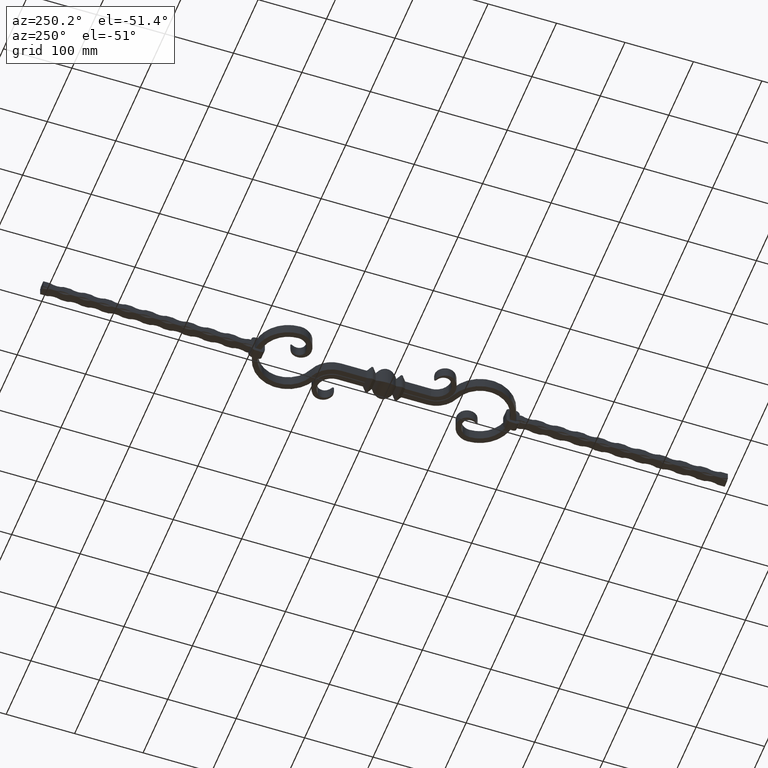
[diagram: clean part render]
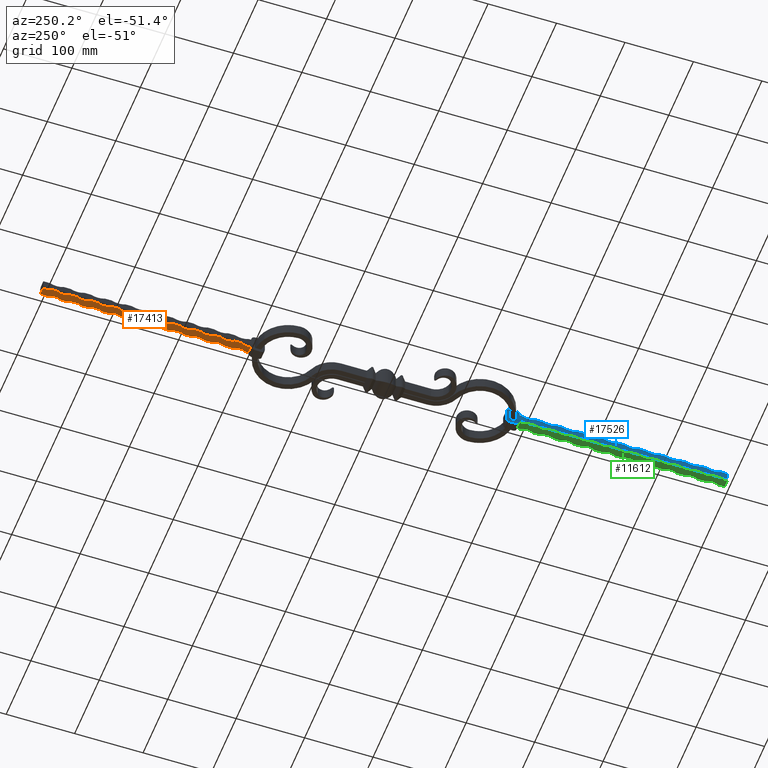
[diagram: same view with three faces highlighted in distinct colors, each labeled with its STEP entity id]
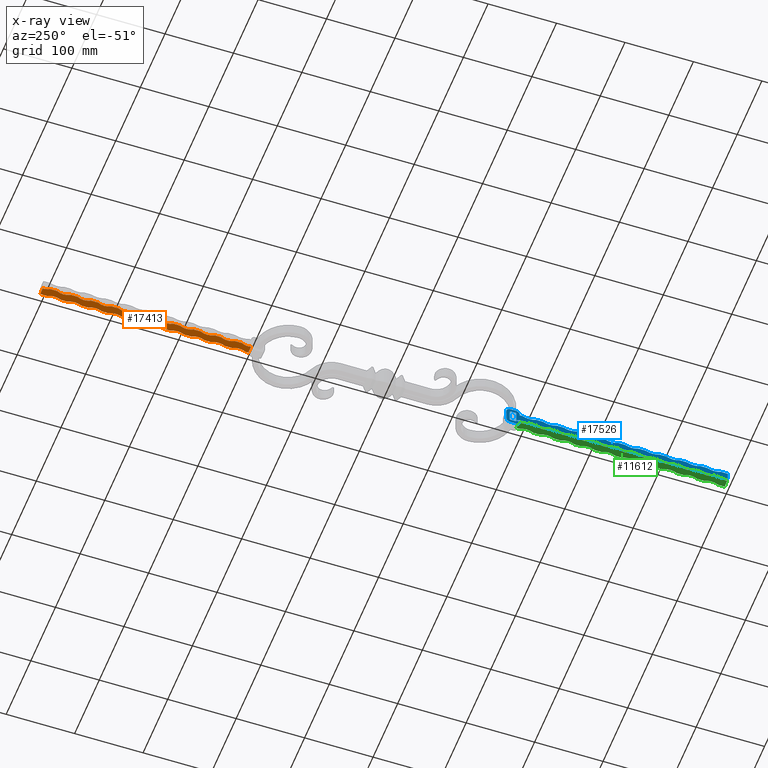
[diagram: x-ray of the same camera — body ghosted, the three highlighted faces saturated]
A machine part, auxiliary view with three faces highlighted in distinct colors.
The next image is the same camera in x-ray (body ghosted, the three faces saturated) — at least one of them is partly hidden behind the body in this view.
Their STEP definitions:

[orange] entity #17413 — the highlighted planar face has unit normal (0, 0, 1).
#37 = VECTOR ( 'NONE', #272, 1000.000000000000000 ) ;
#62 = DIRECTION ( 'NONE',  ( 1.000000000000000000, 0.000000000000000000, 0.000000000000000000 ) ) ;
#80 = CIRCLE ( 'NONE', #3787, 21.25000000000003197 ) ;
#92 = LINE ( 'NONE', #16200, #7591 ) ;
#187 = EDGE_CURVE ( 'NONE', #3295, #10779, #8012, .T. ) ;
#190 = CIRCLE ( 'NONE', #17719, 21.25000000000003197 ) ;
#205 = AXIS2_PLACEMENT_3D ( 'NONE', #9238, #10608, #5173 ) ;
#216 = CARTESIAN_POINT ( 'NONE',  ( -6.499999999999999112, 219.9999999999999716, -6.500000000000003553 ) ) ;
#272 = DIRECTION ( 'NONE',  ( -0.000000000000000000, -1.000000000000000000, -0.000000000000000000 ) ) ;
#304 = VERTEX_POINT ( 'NONE', #8795 ) ;
#308 = CARTESIAN_POINT ( 'NONE',  ( 6.499999999999999112, 500.0000000000000000, -6.499999999999999112 ) ) ;
#396 = VECTOR ( 'NONE', #4594, 1000.000000000000000 ) ;
#449 = ORIENTED_EDGE ( 'NONE', *, *, #14796, .F. ) ;
#564 = VECTOR ( 'NONE', #15362, 1000.000000000000000 ) ;
#620 = ORIENTED_EDGE ( 'NONE', *, *, #18103, .F. ) ;
#647 = DIRECTION ( 'NONE',  ( 1.000000000000000000, 0.000000000000000000, 0.000000000000000000 ) ) ;
#704 = VERTEX_POINT ( 'NONE', #16932 ) ;
#716 = CIRCLE ( 'NONE', #16485, 21.25000000000003197 ) ;
#784 = CARTESIAN_POINT ( 'NONE',  ( -6.500000000000000888, 500.0000000000000000, -6.499999999999999112 ) ) ;
#811 = ORIENTED_EDGE ( 'NONE', *, *, #8852, .T. ) ;
#880 = DIRECTION ( 'NONE',  ( -0.000000000000000000, -1.000000000000000000, -0.000000000000000000 ) ) ;
#889 = CARTESIAN_POINT ( 'NONE',  ( -6.499999999999999112, 339.9999999999999432, -6.500000000000003553 ) ) ;
#925 = DIRECTION ( 'NONE',  ( -0.000000000000000000, -1.000000000000000000, -0.000000000000000000 ) ) ;
#951 = ORIENTED_EDGE ( 'NONE', *, *, #16602, .F. ) ;
#1015 = DIRECTION ( 'NONE',  ( -0.000000000000000000, -1.000000000000000000, -0.000000000000000000 ) ) ;
#1061 = DIRECTION ( 'NONE',  ( 0.000000000000000000, 0.000000000000000000, 1.000000000000000000 ) ) ;
#1139 = EDGE_CURVE ( 'NONE', #15864, #1147, #13538, .T. ) ;
#1147 = VERTEX_POINT ( 'NONE', #10471 ) ;
#1158 = AXIS2_PLACEMENT_3D ( 'NONE', #16919, #5656, #7056 ) ;
#1223 = DIRECTION ( 'NONE',  ( -1.000000000000000000, -0.000000000000000000, -0.000000000000000000 ) ) ;
#1256 = ORIENTED_EDGE ( 'NONE', *, *, #9026, .T. ) ;
#1490 = CARTESIAN_POINT ( 'NONE',  ( 25.25000000000003553, 360.0000000000000000, -6.500000000000001776 ) ) ;
#1577 = AXIS2_PLACEMENT_3D ( 'NONE', #2225, #7933, #17674 ) ;
#1596 = CIRCLE ( 'NONE', #1920, 21.25000000000003197 ) ;
#1597 = CARTESIAN_POINT ( 'NONE',  ( -6.500000000000000888, 196.0000000000000000, -6.499999999999999112 ) ) ;
#1665 = ORIENTED_EDGE ( 'NONE', *, *, #2347, .T. ) ;
#1677 = AXIS2_PLACEMENT_3D ( 'NONE', #9040, #9273, #10586 ) ;
#1703 = ORIENTED_EDGE ( 'NONE', *, *, #9820, .T. ) ;
#1814 = LINE ( 'NONE', #10250, #37 ) ;
#1900 = DIRECTION ( 'NONE',  ( -0.000000000000000000, -1.000000000000000000, -0.000000000000000000 ) ) ;
#1920 = AXIS2_PLACEMENT_3D ( 'NONE', #7839, #4763, #647 ) ;
#1928 = VECTOR ( 'NONE', #7137, 1000.000000000000000 ) ;
#1937 = ORIENTED_EDGE ( 'NONE', *, *, #14955, .T. ) ;
#1961 = LINE ( 'NONE', #10326, #8998 ) ;
#2097 = EDGE_CURVE ( 'NONE', #1147, #17405, #18169, .T. ) ;
#2122 = ORIENTED_EDGE ( 'NONE', *, *, #6233, .T. ) ;
#2182 = LINE ( 'NONE', #10241, #13901 ) ;
#2224 = CARTESIAN_POINT ( 'NONE',  ( -6.499999999999999112, 480.0000000000000000, -6.500000000000003553 ) ) ;
#2225 = CARTESIAN_POINT ( 'NONE',  ( 25.25000000000003553, 480.0000000000000000, -6.500000000000001776 ) ) ;
#2252 = CARTESIAN_POINT ( 'NONE',  ( -6.499999999999999112, 209.9999999999999716, -6.500000000000003553 ) ) ;
#2310 = VECTOR ( 'NONE', #6007, 1000.000000000000000 ) ;
#2347 = EDGE_CURVE ( 'NONE', #704, #11982, #5771, .T. ) ;
#2379 = CARTESIAN_POINT ( 'NONE',  ( 6.499999999999999112, 380.0000000000000000, -6.500000000000001776 ) ) ;
#2409 = ORIENTED_EDGE ( 'NONE', *, *, #9625, .T. ) ;
#2433 = DIRECTION ( 'NONE',  ( 0.000000000000000000, 0.000000000000000000, 1.000000000000000000 ) ) ;
#2437 = CARTESIAN_POINT ( 'NONE',  ( -6.499999999999999112, 420.0000000000000000, -6.500000000000003553 ) ) ;
#2456 = CARTESIAN_POINT ( 'NONE',  ( -6.499999999999999112, 399.9999999999999432, -6.500000000000003553 ) ) ;
#2494 = CARTESIAN_POINT ( 'NONE',  ( 6.499999999999999112, 470.0000000000000000, -6.500000000000001776 ) ) ;
#2557 = CARTESIAN_POINT ( 'NONE',  ( 6.499999999999999112, 500.0000000000000000, -6.499999999999999112 ) ) ;
#2738 = AXIS2_PLACEMENT_3D ( 'NONE', #17697, #9204, #13741 ) ;
#2887 = DIRECTION ( 'NONE',  ( 0.000000000000000000, 0.000000000000000000, 1.000000000000000000 ) ) ;
#2978 = DIRECTION ( 'NONE',  ( 1.000000000000000000, 0.000000000000000000, 0.000000000000000000 ) ) ;
#3019 = VERTEX_POINT ( 'NONE', #8714 ) ;
#3120 = CARTESIAN_POINT ( 'NONE',  ( 6.499999999999999112, 500.0000000000000000, -6.499999999999999112 ) ) ;
#3155 = CARTESIAN_POINT ( 'NONE',  ( -6.499999999999999112, 370.0000000000000000, -6.500000000000003553 ) ) ;
#3241 = LINE ( 'NONE', #308, #1928 ) ;
#3286 = ORIENTED_EDGE ( 'NONE', *, *, #15594, .T. ) ;
#3295 = VERTEX_POINT ( 'NONE', #6717 ) ;
#3301 = LINE ( 'NONE', #12170, #10786 ) ;
#3323 = CARTESIAN_POINT ( 'NONE',  ( 6.499999999999999112, 500.0000000000000000, -6.499999999999999112 ) ) ;
#3416 = DIRECTION ( 'NONE',  ( -0.000000000000000000, -1.000000000000000000, -0.000000000000000000 ) ) ;
#3584 = CARTESIAN_POINT ( 'NONE',  ( -6.499999999999999112, 240.0000000000000000, -6.500000000000003553 ) ) ;
#3732 = ORIENTED_EDGE ( 'NONE', *, *, #11831, .F. ) ;
#3787 = AXIS2_PLACEMENT_3D ( 'NONE', #15542, #9869, #4080 ) ;
#3882 = CIRCLE ( 'NONE', #10845, 21.25000000000003197 ) ;
#3885 = VECTOR ( 'NONE', #4706, 1000.000000000000000 ) ;
#4012 = EDGE_CURVE ( 'NONE', #6189, #6858, #4398, .T. ) ;
#4080 = DIRECTION ( 'NONE',  ( 1.000000000000000000, 0.000000000000000000, 0.000000000000000000 ) ) ;
#4106 = CARTESIAN_POINT ( 'NONE',  ( -6.499999999999999112, 309.9999999999999432, -6.500000000000003553 ) ) ;
#4178 = VERTEX_POINT ( 'NONE', #6609 ) ;
#4197 = CARTESIAN_POINT ( 'NONE',  ( 6.499999999999999112, 439.9999999999999432, -6.500000000000001776 ) ) ;
#4202 = AXIS2_PLACEMENT_3D ( 'NONE', #14100, #8684, #10043 ) ;
#4210 = EDGE_CURVE ( 'NONE', #16152, #7232, #3301, .T. ) ;
#4220 = CARTESIAN_POINT ( 'NONE',  ( -25.25000000000002842, 199.9999999999999432, -6.500000000000003553 ) ) ;
#4272 = LINE ( 'NONE', #16540, #11753 ) ;
#4300 = DIRECTION ( 'NONE',  ( 1.000000000000000000, 0.000000000000000000, 0.000000000000000000 ) ) ;
#4316 = VERTEX_POINT ( 'NONE', #2494 ) ;
#4398 = CIRCLE ( 'NONE', #4812, 21.25000000000003197 ) ;
#4420 = CARTESIAN_POINT ( 'NONE',  ( 6.499999999999999112, 310.0000000000000000, -6.500000000000001776 ) ) ;
#4502 = VECTOR ( 'NONE', #9211, 1000.000000000000000 ) ;
#4552 = EDGE_CURVE ( 'NONE', #9726, #8402, #2182, .T. ) ;
#4594 = DIRECTION ( 'NONE',  ( -0.000000000000000000, -1.000000000000000000, -0.000000000000000000 ) ) ;
#4657 = VECTOR ( 'NONE', #925, 1000.000000000000000 ) ;
#4677 = ORIENTED_EDGE ( 'NONE', *, *, #12209, .F. ) ;
#4703 = LINE ( 'NONE', #9585, #16457 ) ;
#4706 = DIRECTION ( 'NONE',  ( -0.000000000000000000, -1.000000000000000000, -0.000000000000000000 ) ) ;
#4707 = CARTESIAN_POINT ( 'NONE',  ( 6.499999999999999112, 229.9999999999999716, -6.500000000000001776 ) ) ;
#4719 = VECTOR ( 'NONE', #13999, 1000.000000000000000 ) ;
#4763 = DIRECTION ( 'NONE',  ( 0.000000000000000000, 0.000000000000000000, 1.000000000000000000 ) ) ;
#4804 = DIRECTION ( 'NONE',  ( -0.000000000000000000, -1.000000000000000000, -0.000000000000000000 ) ) ;
#4807 = CIRCLE ( 'NONE', #11569, 21.25000000000003197 ) ;
#4812 = AXIS2_PLACEMENT_3D ( 'NONE', #16064, #17347, #8968 ) ;
#4844 = CARTESIAN_POINT ( 'NONE',  ( -6.499999999999999112, 300.0000000000000000, -6.500000000000003553 ) ) ;
#4923 = EDGE_CURVE ( 'NONE', #6651, #6847, #4807, .T. ) ;
#4944 = DIRECTION ( 'NONE',  ( -0.000000000000000000, -1.000000000000000000, -0.000000000000000000 ) ) ;
#4997 = DIRECTION ( 'NONE',  ( 1.000000000000000000, 0.000000000000000000, 0.000000000000000000 ) ) ;
#5017 = VECTOR ( 'NONE', #17423, 1000.000000000000000 ) ;
#5040 = VERTEX_POINT ( 'NONE', #3155 ) ;
#5066 = CARTESIAN_POINT ( 'NONE',  ( -6.500000000000000888, 500.0000000000000000, -6.499999999999999112 ) ) ;
#5075 = CARTESIAN_POINT ( 'NONE',  ( -6.499999999999999112, 429.9999999999999432, -6.500000000000003553 ) ) ;
#5131 = EDGE_CURVE ( 'NONE', #18102, #8840, #16330, .T. ) ;
#5173 = DIRECTION ( 'NONE',  ( 1.000000000000000000, 0.000000000000000000, 0.000000000000000000 ) ) ;
#5216 = VERTEX_POINT ( 'NONE', #13393 ) ;
#5270 = CARTESIAN_POINT ( 'NONE',  ( 25.25000000000003553, 300.0000000000000000, -6.500000000000001776 ) ) ;
#5474 = CIRCLE ( 'NONE', #13821, 21.25000000000003197 ) ;
#5483 = EDGE_CURVE ( 'NONE', #11416, #15864, #6113, .T. ) ;
#5534 = DIRECTION ( 'NONE',  ( 0.000000000000000000, 0.000000000000000000, 1.000000000000000000 ) ) ;
#5554 = EDGE_CURVE ( 'NONE', #11954, #16137, #17205, .T. ) ;
#5555 = EDGE_CURVE ( 'NONE', #8739, #4178, #15440, .T. ) ;
#5563 = EDGE_CURVE ( 'NONE', #18102, #12117, #7430, .T. ) ;
#5656 = DIRECTION ( 'NONE',  ( 0.000000000000000000, 0.000000000000000000, 1.000000000000000000 ) ) ;
#5713 = CARTESIAN_POINT ( 'NONE',  ( 25.25000000000003553, 420.0000000000000000, -6.500000000000001776 ) ) ;
#5771 = CIRCLE ( 'NONE', #1158, 21.25000000000003197 ) ;
#5801 = ORIENTED_EDGE ( 'NONE', *, *, #11439, .T. ) ;
#5830 = ORIENTED_EDGE ( 'NONE', *, *, #10035, .T. ) ;
#5993 = VERTEX_POINT ( 'NONE', #10187 ) ;
#6007 = DIRECTION ( 'NONE',  ( -0.000000000000000000, -1.000000000000000000, -0.000000000000000000 ) ) ;
#6063 = CARTESIAN_POINT ( 'NONE',  ( -4.000000000000000000, 500.0000000000000000, -6.499999999999999112 ) ) ;
#6086 = CARTESIAN_POINT ( 'NONE',  ( -6.500000000000000888, 500.0000000000000000, -6.499999999999999112 ) ) ;
#6093 = CARTESIAN_POINT ( 'NONE',  ( 6.499999999999999112, 500.0000000000000000, -6.499999999999999112 ) ) ;
#6113 = LINE ( 'NONE', #8849, #396 ) ;
#6189 = VERTEX_POINT ( 'NONE', #216 ) ;
#6233 = EDGE_CURVE ( 'NONE', #304, #10097, #7644, .T. ) ;
#6336 = EDGE_CURVE ( 'NONE', #6189, #10756, #14755, .T. ) ;
#6422 = CARTESIAN_POINT ( 'NONE',  ( -6.500000000000000888, 500.0000000000000000, -6.499999999999999112 ) ) ;
#6609 = CARTESIAN_POINT ( 'NONE',  ( 6.499999999999999112, 370.0000000000000000, -6.500000000000001776 ) ) ;
#6651 = VERTEX_POINT ( 'NONE', #8569 ) ;
#6680 = DIRECTION ( 'NONE',  ( 1.000000000000000000, 0.000000000000000000, 0.000000000000000000 ) ) ;
#6717 = CARTESIAN_POINT ( 'NONE',  ( 6.500000000000000000, 196.0000000000000000, -6.499999999999999112 ) ) ;
#6725 = DIRECTION ( 'NONE',  ( -0.000000000000000000, -1.000000000000000000, -0.000000000000000000 ) ) ;
#6758 = EDGE_CURVE ( 'NONE', #15033, #17959, #7867, .T. ) ;
#6847 = VERTEX_POINT ( 'NONE', #2224 ) ;
#6857 = CARTESIAN_POINT ( 'NONE',  ( 6.499999999999999112, 410.0000000000000000, -6.500000000000001776 ) ) ;
#6858 = VERTEX_POINT ( 'NONE', #3584 ) ;
#6880 = CIRCLE ( 'NONE', #1577, 21.25000000000003197 ) ;
#6943 = VERTEX_POINT ( 'NONE', #9659 ) ;
#6977 = DIRECTION ( 'NONE',  ( 1.000000000000000000, 0.000000000000000000, 0.000000000000000000 ) ) ;
#7006 = CARTESIAN_POINT ( 'NONE',  ( -25.25000000000002842, 350.0000000000000000, -6.500000000000003553 ) ) ;
#7054 = ORIENTED_EDGE ( 'NONE', *, *, #4552, .F. ) ;
#7056 = DIRECTION ( 'NONE',  ( 1.000000000000000000, 0.000000000000000000, 0.000000000000000000 ) ) ;
#7101 = AXIS2_PLACEMENT_3D ( 'NONE', #9251, #1061, #4997 ) ;
#7137 = DIRECTION ( 'NONE',  ( -0.000000000000000000, -1.000000000000000000, -0.000000000000000000 ) ) ;
#7153 = CARTESIAN_POINT ( 'NONE',  ( 25.25000000000003553, 390.0000000000000000, -6.500000000000001776 ) ) ;
#7232 = VERTEX_POINT ( 'NONE', #4844 ) ;
#7430 = CIRCLE ( 'NONE', #1677, 21.25000000000003197 ) ;
#7558 = DIRECTION ( 'NONE',  ( -0.000000000000000000, -1.000000000000000000, -0.000000000000000000 ) ) ;
#7566 = VERTEX_POINT ( 'NONE', #15309 ) ;
#7591 = VECTOR ( 'NONE', #15139, 1000.000000000000000 ) ;
#7644 = LINE ( 'NONE', #3120, #3885 ) ;
#7703 = EDGE_CURVE ( 'NONE', #18122, #3019, #1814, .T. ) ;
#7745 = CARTESIAN_POINT ( 'NONE',  ( 6.499999999999999112, 500.0000000000000000, -6.499999999999999112 ) ) ;
#7753 = EDGE_CURVE ( 'NONE', #5993, #11416, #1596, .T. ) ;
#7839 = CARTESIAN_POINT ( 'NONE',  ( 25.25000000000003553, 329.9999999999999432, -6.500000000000001776 ) ) ;
#7867 = LINE ( 'NONE', #6093, #8537 ) ;
#7910 = CARTESIAN_POINT ( 'NONE',  ( 6.499999999999999112, 250.0000000000000000, -6.500000000000001776 ) ) ;
#7931 = VERTEX_POINT ( 'NONE', #18048 ) ;
#7933 = DIRECTION ( 'NONE',  ( 0.000000000000000000, 0.000000000000000000, 1.000000000000000000 ) ) ;
#7958 = CARTESIAN_POINT ( 'NONE',  ( -4.379865836559640790, 196.0000000000000000, -6.500000000000003553 ) ) ;
#7968 = VECTOR ( 'NONE', #15058, 1000.000000000000000 ) ;
#8012 = LINE ( 'NONE', #1597, #4719 ) ;
#8031 = DIRECTION ( 'NONE',  ( 1.000000000000000000, 0.000000000000000000, 0.000000000000000000 ) ) ;
#8281 = ORIENTED_EDGE ( 'NONE', *, *, #5483, .T. ) ;
#8282 = VECTOR ( 'NONE', #880, 1000.000000000000000 ) ;
#8402 = VERTEX_POINT ( 'NONE', #14086 ) ;
#8427 = AXIS2_PLACEMENT_3D ( 'NONE', #4220, #9638, #6977 ) ;
#8478 = CARTESIAN_POINT ( 'NONE',  ( 6.499999999999999112, 400.0000000000000000, -6.500000000000001776 ) ) ;
#8491 = CARTESIAN_POINT ( 'NONE',  ( 25.25000000000003553, 240.0000000000000000, -6.500000000000001776 ) ) ;
#8537 = VECTOR ( 'NONE', #4804, 1000.000000000000000 ) ;
#8569 = CARTESIAN_POINT ( 'NONE',  ( -6.499999999999999112, 459.9999999999999432, -6.500000000000003553 ) ) ;
#8684 = DIRECTION ( 'NONE',  ( 0.000000000000000000, 0.000000000000000000, 1.000000000000000000 ) ) ;
#8714 = CARTESIAN_POINT ( 'NONE',  ( -6.499999999999999112, 329.9999999999999432, -6.500000000000003553 ) ) ;
#8739 = VERTEX_POINT ( 'NONE', #2379 ) ;
#8795 = CARTESIAN_POINT ( 'NONE',  ( 6.499999999999999112, 260.0000000000000000, -6.500000000000001776 ) ) ;
#8808 = VERTEX_POINT ( 'NONE', #16612 ) ;
#8833 = DIRECTION ( 'NONE',  ( 1.000000000000000000, 0.000000000000000000, 0.000000000000000000 ) ) ;
#8840 = VERTEX_POINT ( 'NONE', #2437 ) ;
#8849 = CARTESIAN_POINT ( 'NONE',  ( 6.499999999999999112, 500.0000000000000000, -6.499999999999999112 ) ) ;
#8852 = EDGE_CURVE ( 'NONE', #10779, #10756, #13913, .T. ) ;
#8968 = DIRECTION ( 'NONE',  ( 1.000000000000000000, 0.000000000000000000, 0.000000000000000000 ) ) ;
#8998 = VECTOR ( 'NONE', #1900, 1000.000000000000000 ) ;
#9026 = EDGE_CURVE ( 'NONE', #11350, #14181, #17899, .T. ) ;
#9040 = CARTESIAN_POINT ( 'NONE',  ( -25.25000000000002842, 439.9999999999999432, -6.500000000000003553 ) ) ;
#9053 = ORIENTED_EDGE ( 'NONE', *, *, #13722, .T. ) ;
#9172 = ORIENTED_EDGE ( 'NONE', *, *, #15340, .T. ) ;
#9204 = DIRECTION ( 'NONE',  ( 0.000000000000000000, 0.000000000000000000, 1.000000000000000000 ) ) ;
#9210 = VECTOR ( 'NONE', #7558, 1000.000000000000000 ) ;
#9211 = DIRECTION ( 'NONE',  ( -0.000000000000000000, -1.000000000000000000, -0.000000000000000000 ) ) ;
#9238 = CARTESIAN_POINT ( 'NONE',  ( -25.25000000000002842, 290.0000000000000000, -6.500000000000003553 ) ) ;
#9251 = CARTESIAN_POINT ( 'NONE',  ( -25.25000000000002842, 260.0000000000000000, -6.500000000000003553 ) ) ;
#9273 = DIRECTION ( 'NONE',  ( 0.000000000000000000, 0.000000000000000000, 1.000000000000000000 ) ) ;
#9585 = CARTESIAN_POINT ( 'NONE',  ( -6.500000000000000888, 500.0000000000000000, -6.499999999999999112 ) ) ;
#9609 = EDGE_LOOP ( 'NONE', ( #15808, #811, #16423, #14699, #620, #11016, #951, #2409, #15724, #5830, #12346, #5801, #4677, #11625, #7054, #9172, #10965, #13396, #11471, #15828, #3732, #1665, #449, #10164, #3286, #14794, #1256, #17084, #10907, #14742, #17620, #16167, #1703, #9053, #16097, #8281, #11684, #16753, #16733, #2122, #15018, #16613, #1937, #14051 ) ) ;
#9625 = EDGE_CURVE ( 'NONE', #8808, #7232, #11672, .T. ) ;
#9638 = DIRECTION ( 'NONE',  ( 0.000000000000000000, 0.000000000000000000, 1.000000000000000000 ) ) ;
#9659 = CARTESIAN_POINT ( 'NONE',  ( 6.499999999999999112, 350.0000000000000000, -6.500000000000001776 ) ) ;
#9726 = VERTEX_POINT ( 'NONE', #2456 ) ;
#9820 = EDGE_CURVE ( 'NONE', #4178, #6943, #190, .T. ) ;
#9869 = DIRECTION ( 'NONE',  ( 0.000000000000000000, 0.000000000000000000, 1.000000000000000000 ) ) ;
#9983 = CARTESIAN_POINT ( 'NONE',  ( 6.499999999999999112, 280.0000000000000000, -6.500000000000001776 ) ) ;
#10035 = EDGE_CURVE ( 'NONE', #16152, #3019, #5474, .T. ) ;
#10043 = DIRECTION ( 'NONE',  ( 1.000000000000000000, 0.000000000000000000, -0.000000000000000000 ) ) ;
#10070 = CARTESIAN_POINT ( 'NONE',  ( 6.499999999999999112, 199.9999999999999432, -6.500000000000001776 ) ) ;
#10097 = VERTEX_POINT ( 'NONE', #7910 ) ;
#10164 = ORIENTED_EDGE ( 'NONE', *, *, #10571, .T. ) ;
#10166 = EDGE_CURVE ( 'NONE', #17405, #304, #12554, .T. ) ;
#10187 = CARTESIAN_POINT ( 'NONE',  ( 6.499999999999999112, 339.9999999999999432, -6.500000000000001776 ) ) ;
#10237 = LINE ( 'NONE', #10324, #2310 ) ;
#10241 = CARTESIAN_POINT ( 'NONE',  ( -6.500000000000000888, 500.0000000000000000, -6.499999999999999112 ) ) ;
#10250 = CARTESIAN_POINT ( 'NONE',  ( -6.500000000000000888, 500.0000000000000000, -6.499999999999999112 ) ) ;
#10256 = DIRECTION ( 'NONE',  ( 0.000000000000000000, 0.000000000000000000, 1.000000000000000000 ) ) ;
#10324 = CARTESIAN_POINT ( 'NONE',  ( 6.499999999999999112, 500.0000000000000000, -6.499999999999999112 ) ) ;
#10326 = CARTESIAN_POINT ( 'NONE',  ( 6.499999999999999112, 500.0000000000000000, -6.499999999999999112 ) ) ;
#10471 = CARTESIAN_POINT ( 'NONE',  ( 6.499999999999999112, 290.0000000000000000, -6.500000000000001776 ) ) ;
#10571 = EDGE_CURVE ( 'NONE', #5216, #7566, #1961, .T. ) ;
#10586 = DIRECTION ( 'NONE',  ( 1.000000000000000000, 0.000000000000000000, 0.000000000000000000 ) ) ;
#10608 = DIRECTION ( 'NONE',  ( 0.000000000000000000, 0.000000000000000000, 1.000000000000000000 ) ) ;
#10756 = VERTEX_POINT ( 'NONE', #2252 ) ;
#10779 = VERTEX_POINT ( 'NONE', #7958 ) ;
#10786 = VECTOR ( 'NONE', #6725, 1000.000000000000000 ) ;
#10845 = AXIS2_PLACEMENT_3D ( 'NONE', #7006, #11216, #62 ) ;
#10907 = ORIENTED_EDGE ( 'NONE', *, *, #5554, .T. ) ;
#10956 = VECTOR ( 'NONE', #4944, 1000.000000000000000 ) ;
#10965 = ORIENTED_EDGE ( 'NONE', *, *, #5131, .F. ) ;
#11016 = ORIENTED_EDGE ( 'NONE', *, *, #17260, .T. ) ;
#11216 = DIRECTION ( 'NONE',  ( 0.000000000000000000, 0.000000000000000000, 1.000000000000000000 ) ) ;
#11319 = CIRCLE ( 'NONE', #18245, 21.25000000000003197 ) ;
#11350 = VERTEX_POINT ( 'NONE', #17621 ) ;
#11367 = DIRECTION ( 'NONE',  ( 0.000000000000000000, 0.000000000000000000, 1.000000000000000000 ) ) ;
#11416 = VERTEX_POINT ( 'NONE', #13782 ) ;
#11439 = EDGE_CURVE ( 'NONE', #18122, #16566, #3882, .T. ) ;
#11468 = DIRECTION ( 'NONE',  ( -0.000000000000000000, -1.000000000000000000, -0.000000000000000000 ) ) ;
#11471 = ORIENTED_EDGE ( 'NONE', *, *, #14281, .F. ) ;
#11529 = EDGE_CURVE ( 'NONE', #14181, #11954, #3241, .T. ) ;
#11569 = AXIS2_PLACEMENT_3D ( 'NONE', #16944, #12838, #12903 ) ;
#11583 = VERTEX_POINT ( 'NONE', #14283 ) ;
#11625 = ORIENTED_EDGE ( 'NONE', *, *, #16434, .T. ) ;
#11672 = CIRCLE ( 'NONE', #205, 21.25000000000003197 ) ;
#11684 = ORIENTED_EDGE ( 'NONE', *, *, #1139, .T. ) ;
#11686 = CARTESIAN_POINT ( 'NONE',  ( 6.499999999999999112, 219.9999999999999716, -6.500000000000001776 ) ) ;
#11739 = CARTESIAN_POINT ( 'NONE',  ( 6.499999999999999112, 430.0000000000000000, -6.500000000000001776 ) ) ;
#11753 = VECTOR ( 'NONE', #1015, 1000.000000000000000 ) ;
#11784 = LINE ( 'NONE', #7745, #4502 ) ;
#11801 = DIRECTION ( 'NONE',  ( 1.000000000000000000, 0.000000000000000000, 0.000000000000000000 ) ) ;
#11831 = EDGE_CURVE ( 'NONE', #704, #6847, #13398, .T. ) ;
#11954 = VERTEX_POINT ( 'NONE', #11739 ) ;
#11982 = VERTEX_POINT ( 'NONE', #6063 ) ;
#12114 = DIRECTION ( 'NONE',  ( 1.000000000000000000, 0.000000000000000000, 0.000000000000000000 ) ) ;
#12117 = VERTEX_POINT ( 'NONE', #13183 ) ;
#12170 = CARTESIAN_POINT ( 'NONE',  ( -6.500000000000000888, 500.0000000000000000, -6.499999999999999112 ) ) ;
#12209 = EDGE_CURVE ( 'NONE', #5040, #16566, #12496, .T. ) ;
#12243 = DIRECTION ( 'NONE',  ( 0.000000000000000000, 0.000000000000000000, 1.000000000000000000 ) ) ;
#12346 = ORIENTED_EDGE ( 'NONE', *, *, #7703, .F. ) ;
#12496 = LINE ( 'NONE', #6422, #8282 ) ;
#12554 = CIRCLE ( 'NONE', #12856, 21.25000000000003197 ) ;
#12766 = AXIS2_PLACEMENT_3D ( 'NONE', #5713, #14646, #15637 ) ;
#12838 = DIRECTION ( 'NONE',  ( 0.000000000000000000, 0.000000000000000000, 1.000000000000000000 ) ) ;
#12856 = AXIS2_PLACEMENT_3D ( 'NONE', #13497, #14942, #12114 ) ;
#12903 = DIRECTION ( 'NONE',  ( 1.000000000000000000, 0.000000000000000000, 0.000000000000000000 ) ) ;
#13023 = AXIS2_PLACEMENT_3D ( 'NONE', #14447, #10256, #8833 ) ;
#13168 = VECTOR ( 'NONE', #16439, 1000.000000000000000 ) ;
#13183 = CARTESIAN_POINT ( 'NONE',  ( -6.499999999999999112, 449.9999999999999432, -6.500000000000003553 ) ) ;
#13261 = EDGE_CURVE ( 'NONE', #16137, #16249, #92, .T. ) ;
#13393 = CARTESIAN_POINT ( 'NONE',  ( 6.499999999999999112, 500.0000000000000000, -6.499999999999999112 ) ) ;
#13396 = ORIENTED_EDGE ( 'NONE', *, *, #5563, .T. ) ;
#13398 = LINE ( 'NONE', #784, #13168 ) ;
#13497 = CARTESIAN_POINT ( 'NONE',  ( 25.25000000000003553, 270.0000000000000000, -6.500000000000001776 ) ) ;
#13538 = CIRCLE ( 'NONE', #17952, 21.25000000000003197 ) ;
#13549 = EDGE_CURVE ( 'NONE', #4316, #11350, #11784, .T. ) ;
#13722 = EDGE_CURVE ( 'NONE', #6943, #5993, #14724, .T. ) ;
#13741 = DIRECTION ( 'NONE',  ( 1.000000000000000000, 0.000000000000000000, 0.000000000000000000 ) ) ;
#13782 = CARTESIAN_POINT ( 'NONE',  ( 6.499999999999999112, 319.9999999999999432, -6.500000000000001776 ) ) ;
#13821 = AXIS2_PLACEMENT_3D ( 'NONE', #17709, #2433, #8031 ) ;
#13901 = VECTOR ( 'NONE', #3416, 1000.000000000000000 ) ;
#13913 = CIRCLE ( 'NONE', #8427, 21.25000000000003197 ) ;
#13999 = DIRECTION ( 'NONE',  ( -1.000000000000000000, -0.000000000000000000, -0.000000000000000000 ) ) ;
#14051 = ORIENTED_EDGE ( 'NONE', *, *, #16325, .T. ) ;
#14086 = CARTESIAN_POINT ( 'NONE',  ( -6.499999999999999112, 390.0000000000000000, -6.500000000000003553 ) ) ;
#14100 = CARTESIAN_POINT ( 'NONE',  ( -6.500000000000000888, 500.0000000000000000, -6.499999999999999112 ) ) ;
#14181 = VERTEX_POINT ( 'NONE', #4197 ) ;
#14211 = DIRECTION ( 'NONE',  ( 1.000000000000000000, 0.000000000000000000, 0.000000000000000000 ) ) ;
#14281 = EDGE_CURVE ( 'NONE', #6651, #12117, #14706, .T. ) ;
#14283 = CARTESIAN_POINT ( 'NONE',  ( -6.499999999999999112, 249.9999999999999716, -6.500000000000003553 ) ) ;
#14447 = CARTESIAN_POINT ( 'NONE',  ( 25.25000000000003553, 209.9999999999999716, -6.500000000000001776 ) ) ;
#14646 = DIRECTION ( 'NONE',  ( 0.000000000000000000, 0.000000000000000000, 1.000000000000000000 ) ) ;
#14699 = ORIENTED_EDGE ( 'NONE', *, *, #4012, .T. ) ;
#14706 = LINE ( 'NONE', #17309, #17353 ) ;
#14724 = LINE ( 'NONE', #2557, #564 ) ;
#14742 = ORIENTED_EDGE ( 'NONE', *, *, #13261, .T. ) ;
#14755 = LINE ( 'NONE', #5066, #10956 ) ;
#14794 = ORIENTED_EDGE ( 'NONE', *, *, #13549, .T. ) ;
#14796 = EDGE_CURVE ( 'NONE', #5216, #11982, #4703, .T. ) ;
#14816 = VERTEX_POINT ( 'NONE', #10070 ) ;
#14880 = CIRCLE ( 'NONE', #2738, 21.25000000000003197 ) ;
#14942 = DIRECTION ( 'NONE',  ( 0.000000000000000000, 0.000000000000000000, 1.000000000000000000 ) ) ;
#14955 = EDGE_CURVE ( 'NONE', #17959, #14816, #15574, .T. ) ;
#14993 = CARTESIAN_POINT ( 'NONE',  ( -6.500000000000000888, 500.0000000000000000, -6.499999999999999112 ) ) ;
#15018 = ORIENTED_EDGE ( 'NONE', *, *, #15789, .T. ) ;
#15033 = VERTEX_POINT ( 'NONE', #4707 ) ;
#15058 = DIRECTION ( 'NONE',  ( -0.000000000000000000, -1.000000000000000000, -0.000000000000000000 ) ) ;
#15139 = DIRECTION ( 'NONE',  ( -0.000000000000000000, -1.000000000000000000, -0.000000000000000000 ) ) ;
#15309 = CARTESIAN_POINT ( 'NONE',  ( 6.499999999999999112, 490.0000000000000000, -6.500000000000001776 ) ) ;
#15340 = EDGE_CURVE ( 'NONE', #9726, #8840, #80, .T. ) ;
#15342 = CIRCLE ( 'NONE', #7101, 21.25000000000003197 ) ;
#15362 = DIRECTION ( 'NONE',  ( -0.000000000000000000, -1.000000000000000000, -0.000000000000000000 ) ) ;
#15440 = LINE ( 'NONE', #3323, #9210 ) ;
#15542 = CARTESIAN_POINT ( 'NONE',  ( -25.25000000000002842, 410.0000000000000000, -6.500000000000003553 ) ) ;
#15574 = CIRCLE ( 'NONE', #13023, 21.25000000000003197 ) ;
#15594 = EDGE_CURVE ( 'NONE', #7566, #4316, #6880, .T. ) ;
#15599 = PLANE ( 'NONE',  #4202 ) ;
#15637 = DIRECTION ( 'NONE',  ( 1.000000000000000000, 0.000000000000000000, 0.000000000000000000 ) ) ;
#15724 = ORIENTED_EDGE ( 'NONE', *, *, #4210, .F. ) ;
#15789 = EDGE_CURVE ( 'NONE', #10097, #15033, #716, .T. ) ;
#15808 = ORIENTED_EDGE ( 'NONE', *, *, #187, .T. ) ;
#15828 = ORIENTED_EDGE ( 'NONE', *, *, #4923, .T. ) ;
#15864 = VERTEX_POINT ( 'NONE', #4420 ) ;
#15987 = LINE ( 'NONE', #14993, #7968 ) ;
#16051 = CARTESIAN_POINT ( 'NONE',  ( 25.25000000000003553, 449.9999999999999432, -6.500000000000001776 ) ) ;
#16064 = CARTESIAN_POINT ( 'NONE',  ( -25.25000000000002842, 229.9999999999999716, -6.500000000000003553 ) ) ;
#16097 = ORIENTED_EDGE ( 'NONE', *, *, #7753, .T. ) ;
#16137 = VERTEX_POINT ( 'NONE', #6857 ) ;
#16152 = VERTEX_POINT ( 'NONE', #4106 ) ;
#16167 = ORIENTED_EDGE ( 'NONE', *, *, #5555, .T. ) ;
#16200 = CARTESIAN_POINT ( 'NONE',  ( 6.499999999999999112, 500.0000000000000000, -6.499999999999999112 ) ) ;
#16249 = VERTEX_POINT ( 'NONE', #8478 ) ;
#16325 = EDGE_CURVE ( 'NONE', #14816, #3295, #10237, .T. ) ;
#16330 = LINE ( 'NONE', #6086, #5017 ) ;
#16353 = CARTESIAN_POINT ( 'NONE',  ( -6.499999999999999112, 360.0000000000000000, -6.500000000000003553 ) ) ;
#16423 = ORIENTED_EDGE ( 'NONE', *, *, #6336, .F. ) ;
#16434 = EDGE_CURVE ( 'NONE', #5040, #8402, #14880, .T. ) ;
#16439 = DIRECTION ( 'NONE',  ( -0.000000000000000000, -1.000000000000000000, -0.000000000000000000 ) ) ;
#16457 = VECTOR ( 'NONE', #1223, 1000.000000000000000 ) ;
#16485 = AXIS2_PLACEMENT_3D ( 'NONE', #8491, #2887, #4300 ) ;
#16540 = CARTESIAN_POINT ( 'NONE',  ( -6.500000000000000888, 500.0000000000000000, -6.499999999999999112 ) ) ;
#16566 = VERTEX_POINT ( 'NONE', #16353 ) ;
#16602 = EDGE_CURVE ( 'NONE', #8808, #7931, #4272, .T. ) ;
#16612 = CARTESIAN_POINT ( 'NONE',  ( -6.499999999999999112, 279.9999999999999432, -6.500000000000003553 ) ) ;
#16613 = ORIENTED_EDGE ( 'NONE', *, *, #6758, .T. ) ;
#16669 = FACE_OUTER_BOUND ( 'NONE', #9609, .T. ) ;
#16733 = ORIENTED_EDGE ( 'NONE', *, *, #10166, .T. ) ;
#16739 = AXIS2_PLACEMENT_3D ( 'NONE', #16051, #17341, #11801 ) ;
#16753 = ORIENTED_EDGE ( 'NONE', *, *, #2097, .T. ) ;
#16767 = EDGE_CURVE ( 'NONE', #16249, #8739, #11319, .T. ) ;
#16919 = CARTESIAN_POINT ( 'NONE',  ( -25.25000000000003197, 500.0000000000000000, -6.499999999999997335 ) ) ;
#16932 = CARTESIAN_POINT ( 'NONE',  ( -6.500000000000001776, 490.0000000000000000, -6.499999999999997335 ) ) ;
#16944 = CARTESIAN_POINT ( 'NONE',  ( -25.25000000000002842, 470.0000000000000000, -6.500000000000003553 ) ) ;
#17084 = ORIENTED_EDGE ( 'NONE', *, *, #11529, .T. ) ;
#17205 = CIRCLE ( 'NONE', #12766, 21.25000000000003197 ) ;
#17260 = EDGE_CURVE ( 'NONE', #11583, #7931, #15342, .T. ) ;
#17309 = CARTESIAN_POINT ( 'NONE',  ( -6.500000000000000888, 500.0000000000000000, -6.499999999999999112 ) ) ;
#17341 = DIRECTION ( 'NONE',  ( 0.000000000000000000, 0.000000000000000000, 1.000000000000000000 ) ) ;
#17347 = DIRECTION ( 'NONE',  ( 0.000000000000000000, 0.000000000000000000, 1.000000000000000000 ) ) ;
#17353 = VECTOR ( 'NONE', #11468, 1000.000000000000000 ) ;
#17405 = VERTEX_POINT ( 'NONE', #9983 ) ;
#17413 = ADVANCED_FACE ( 'NONE', ( #16669 ), #15599, .F. ) ;
#17423 = DIRECTION ( 'NONE',  ( -0.000000000000000000, -1.000000000000000000, -0.000000000000000000 ) ) ;
#17620 = ORIENTED_EDGE ( 'NONE', *, *, #16767, .T. ) ;
#17621 = CARTESIAN_POINT ( 'NONE',  ( 6.499999999999999112, 459.9999999999999432, -6.500000000000001776 ) ) ;
#17674 = DIRECTION ( 'NONE',  ( 1.000000000000000000, 0.000000000000000000, 0.000000000000000000 ) ) ;
#17697 = CARTESIAN_POINT ( 'NONE',  ( -25.25000000000002842, 380.0000000000000000, -6.500000000000003553 ) ) ;
#17709 = CARTESIAN_POINT ( 'NONE',  ( -25.25000000000002842, 319.9999999999999432, -6.500000000000003553 ) ) ;
#17719 = AXIS2_PLACEMENT_3D ( 'NONE', #1490, #5534, #14211 ) ;
#17899 = CIRCLE ( 'NONE', #16739, 21.25000000000003197 ) ;
#17952 = AXIS2_PLACEMENT_3D ( 'NONE', #5270, #12243, #6680 ) ;
#17959 = VERTEX_POINT ( 'NONE', #11686 ) ;
#18048 = CARTESIAN_POINT ( 'NONE',  ( -6.499999999999999112, 270.0000000000000000, -6.500000000000003553 ) ) ;
#18102 = VERTEX_POINT ( 'NONE', #5075 ) ;
#18103 = EDGE_CURVE ( 'NONE', #11583, #6858, #15987, .T. ) ;
#18122 = VERTEX_POINT ( 'NONE', #889 ) ;
#18159 = CARTESIAN_POINT ( 'NONE',  ( 6.499999999999999112, 500.0000000000000000, -6.499999999999999112 ) ) ;
#18169 = LINE ( 'NONE', #18159, #4657 ) ;
#18245 = AXIS2_PLACEMENT_3D ( 'NONE', #7153, #11367, #2978 ) ;

[blue] entity #17526 — the highlighted planar face has unit normal (1, 0, 0).
#33 = VERTEX_POINT ( 'NONE', #7166 ) ;
#44 = CARTESIAN_POINT ( 'NONE',  ( -6.499999999999999112, -380.0000000000000000, 6.500000000000000888 ) ) ;
#47 = CARTESIAN_POINT ( 'NONE',  ( -6.499999999999999112, -459.9999999999999432, -6.500000000000003553 ) ) ;
#49 = VERTEX_POINT ( 'NONE', #18248 ) ;
#117 = CARTESIAN_POINT ( 'NONE',  ( -6.499999999999999112, -500.0000000000000000, 6.500000000000000888 ) ) ;
#151 = ORIENTED_EDGE ( 'NONE', *, *, #5621, .T. ) ;
#153 = ORIENTED_EDGE ( 'NONE', *, *, #3448, .T. ) ;
#198 = VERTEX_POINT ( 'NONE', #15434 ) ;
#311 = EDGE_CURVE ( 'NONE', #9014, #1163, #14910, .T. ) ;
#381 = CIRCLE ( 'NONE', #15655, 6.000000000000002665 ) ;
#409 = EDGE_CURVE ( 'NONE', #2942, #14927, #2087, .T. ) ;
#495 = CIRCLE ( 'NONE', #14654, 21.25000000000003553 ) ;
#509 = LINE ( 'NONE', #8672, #16646 ) ;
#522 = CARTESIAN_POINT ( 'NONE',  ( -6.500000000000000000, -191.0000000000000000, -7.000000000000031086 ) ) ;
#540 = VERTEX_POINT ( 'NONE', #2096 ) ;
#635 = CIRCLE ( 'NONE', #14810, 21.25000000000003553 ) ;
#652 = CARTESIAN_POINT ( 'NONE',  ( -6.500000000000000888, -500.0000000000000000, -6.499999999999999112 ) ) ;
#665 = LINE ( 'NONE', #10138, #15476 ) ;
#729 = EDGE_CURVE ( 'NONE', #3152, #10022, #17336, .T. ) ;
#732 = EDGE_CURVE ( 'NONE', #2355, #17717, #7996, .T. ) ;
#735 = DIRECTION ( 'NONE',  ( 0.000000000000000000, 0.000000000000000000, 1.000000000000000000 ) ) ;
#758 = VERTEX_POINT ( 'NONE', #1365 ) ;
#802 = EDGE_CURVE ( 'NONE', #11453, #2189, #16228, .T. ) ;
#813 = AXIS2_PLACEMENT_3D ( 'NONE', #9177, #920, #10783 ) ;
#852 = CARTESIAN_POINT ( 'NONE',  ( -6.500000000000000000, -176.4038591061661805, 8.000000000000000000 ) ) ;
#854 = ORIENTED_EDGE ( 'NONE', *, *, #6773, .T. ) ;
#867 = ORIENTED_EDGE ( 'NONE', *, *, #10572, .F. ) ;
#895 = CIRCLE ( 'NONE', #10436, 21.25000000000003553 ) ;
#920 = DIRECTION ( 'NONE',  ( -1.000000000000000000, -0.000000000000000000, -0.000000000000000000 ) ) ;
#1051 = CIRCLE ( 'NONE', #5430, 21.25000000000003553 ) ;
#1093 = VERTEX_POINT ( 'NONE', #14836 ) ;
#1163 = VERTEX_POINT ( 'NONE', #3331 ) ;
#1166 = VECTOR ( 'NONE', #10467, 1000.000000000000000 ) ;
#1230 = CARTESIAN_POINT ( 'NONE',  ( -6.499999999999999112, -280.0000000000000000, 6.500000000000000888 ) ) ;
#1255 = EDGE_CURVE ( 'NONE', #3152, #16350, #9311, .T. ) ;
#1270 = CARTESIAN_POINT ( 'NONE',  ( -6.499999999999999112, -199.9999999999999432, 12.25000000000002842 ) ) ;
#1286 = CARTESIAN_POINT ( 'NONE',  ( -6.499999999999999112, -360.0000000000000000, 25.25000000000003553 ) ) ;
#1303 = VECTOR ( 'NONE', #8503, 1000.000000000000000 ) ;
#1365 = CARTESIAN_POINT ( 'NONE',  ( -6.500000000000000000, -182.4038591061661805, 9.000000000000001776 ) ) ;
#1397 = CARTESIAN_POINT ( 'NONE',  ( -6.500000000000000000, -190.0000000000000000, -7.999999999999996447 ) ) ;
#1424 = CARTESIAN_POINT ( 'NONE',  ( -6.499999999999999112, -390.0000000000000000, -6.500000000000003553 ) ) ;
#1445 = VECTOR ( 'NONE', #735, 1000.000000000000000 ) ;
#1456 = DIRECTION ( 'NONE',  ( -0.000000000000000000, 1.000000000000000000, -0.000000000000000000 ) ) ;
#1457 = CIRCLE ( 'NONE', #8378, 6.000000000000005329 ) ;
#1484 = DIRECTION ( 'NONE',  ( 0.000000000000000000, 0.000000000000000000, 1.000000000000000000 ) ) ;
#1495 = DIRECTION ( 'NONE',  ( 0.000000000000000000, -1.000000000000000000, -2.283690495242095148E-16 ) ) ;
#1599 = AXIS2_PLACEMENT_3D ( 'NONE', #6219, #3343, #14727 ) ;
#1600 = LINE ( 'NONE', #12637, #17712 ) ;
#1625 = CIRCLE ( 'NONE', #13927, 21.25000000000003553 ) ;
#1634 = DIRECTION ( 'NONE',  ( 0.000000000000000000, 0.000000000000000000, -1.000000000000000000 ) ) ;
#1642 = DIRECTION ( 'NONE',  ( -1.000000000000000000, -0.000000000000000000, -0.000000000000000000 ) ) ;
#1705 = ORIENTED_EDGE ( 'NONE', *, *, #17991, .T. ) ;
#1711 = DIRECTION ( 'NONE',  ( -1.000000000000000000, -0.000000000000000000, -0.000000000000000000 ) ) ;
#1717 = CARTESIAN_POINT ( 'NONE',  ( -6.499999999999999112, -500.0000000000000000, 6.500000000000000888 ) ) ;
#1751 = CARTESIAN_POINT ( 'NONE',  ( -6.500000000000000000, -190.0000000000000000, 9.000000000000001776 ) ) ;
#1794 = CARTESIAN_POINT ( 'NONE',  ( -6.499999999999999112, -459.9999999999999432, 6.500000000000000888 ) ) ;
#1802 = CIRCLE ( 'NONE', #3039, 21.25000000000003553 ) ;
#1851 = EDGE_CURVE ( 'NONE', #14930, #11345, #2475, .T. ) ;
#1954 = VERTEX_POINT ( 'NONE', #14912 ) ;
#1968 = LINE ( 'NONE', #17623, #6568 ) ;
#1988 = CARTESIAN_POINT ( 'NONE',  ( -6.499999999999999112, -390.0000000000000000, 25.25000000000003553 ) ) ;
#1990 = ORIENTED_EDGE ( 'NONE', *, *, #6105, .F. ) ;
#2001 = AXIS2_PLACEMENT_3D ( 'NONE', #9462, #16559, #9521 ) ;
#2053 = DIRECTION ( 'NONE',  ( 0.000000000000000000, 0.000000000000000000, -1.000000000000000000 ) ) ;
#2062 = CIRCLE ( 'NONE', #9121, 21.25000000000003553 ) ;
#2087 = CIRCLE ( 'NONE', #7951, 21.25000000000003553 ) ;
#2096 = CARTESIAN_POINT ( 'NONE',  ( -6.500000000000000000, -182.4038591061661805, -14.00000000000000178 ) ) ;
#2108 = CARTESIAN_POINT ( 'NONE',  ( -6.499999999999999112, -270.0000000000000000, 25.25000000000003553 ) ) ;
#2132 = VECTOR ( 'NONE', #9153, 1000.000000000000000 ) ;
#2189 = VERTEX_POINT ( 'NONE', #1794 ) ;
#2213 = ORIENTED_EDGE ( 'NONE', *, *, #311, .T. ) ;
#2245 = EDGE_CURVE ( 'NONE', #3994, #16350, #11726, .T. ) ;
#2254 = VERTEX_POINT ( 'NONE', #7630 ) ;
#2270 = LINE ( 'NONE', #3510, #15532 ) ;
#2275 = VECTOR ( 'NONE', #1634, 1000.000000000000000 ) ;
#2284 = FACE_OUTER_BOUND ( 'NONE', #5072, .T. ) ;
#2298 = VERTEX_POINT ( 'NONE', #1230 ) ;
#2315 = AXIS2_PLACEMENT_3D ( 'NONE', #1397, #12676, #7097 ) ;
#2338 = AXIS2_PLACEMENT_3D ( 'NONE', #3067, #13061, #12938 ) ;
#2341 = ORIENTED_EDGE ( 'NONE', *, *, #8687, .F. ) ;
#2355 = VERTEX_POINT ( 'NONE', #6384 ) ;
#2370 = EDGE_CURVE ( 'NONE', #9904, #16003, #1600, .T. ) ;
#2439 = ORIENTED_EDGE ( 'NONE', *, *, #4077, .F. ) ;
#2454 = EDGE_CURVE ( 'NONE', #11581, #2298, #15756, .T. ) ;
#2475 = CIRCLE ( 'NONE', #15736, 21.25000000000003553 ) ;
#2533 = CARTESIAN_POINT ( 'NONE',  ( -6.500000000000000888, -500.0000000000000000, -3.999999999999994671 ) ) ;
#2556 = ORIENTED_EDGE ( 'NONE', *, *, #4851, .T. ) ;
#2652 = EDGE_CURVE ( 'NONE', #11581, #3452, #1802, .T. ) ;
#2762 = ORIENTED_EDGE ( 'NONE', *, *, #15475, .F. ) ;
#2852 = CARTESIAN_POINT ( 'NONE',  ( -6.500000000000000000, -181.4038591061661805, -7.999999999999996447 ) ) ;
#2866 = DIRECTION ( 'NONE',  ( 0.000000000000000000, 0.000000000000000000, -1.000000000000000000 ) ) ;
#2872 = DIRECTION ( 'NONE',  ( -1.000000000000000000, -0.000000000000000000, -0.000000000000000000 ) ) ;
#2889 = EDGE_CURVE ( 'NONE', #9440, #1093, #7504, .T. ) ;
#2942 = VERTEX_POINT ( 'NONE', #5834 ) ;
#2954 = CARTESIAN_POINT ( 'NONE',  ( -6.499999999999999112, -439.9999999999999432, -25.25000000000003197 ) ) ;
#2963 = DIRECTION ( 'NONE',  ( -1.000000000000000000, -0.000000000000000000, -0.000000000000000000 ) ) ;
#2983 = DIRECTION ( 'NONE',  ( 0.000000000000000000, 0.000000000000000000, -1.000000000000000000 ) ) ;
#3039 = AXIS2_PLACEMENT_3D ( 'NONE', #13372, #6254, #17643 ) ;
#3067 = CARTESIAN_POINT ( 'NONE',  ( -6.500000000000000000, -182.4038591061661805, 7.999999999999998224 ) ) ;
#3134 = CARTESIAN_POINT ( 'NONE',  ( -6.500000000000000888, -195.9684936844944332, -8.614070955305900057 ) ) ;
#3135 = CARTESIAN_POINT ( 'NONE',  ( -6.499999999999999112, -370.0000000000000000, -6.500000000000003553 ) ) ;
#3152 = VERTEX_POINT ( 'NONE', #4709 ) ;
#3156 = PLANE ( 'NONE',  #11067 ) ;
#3166 = CIRCLE ( 'NONE', #7212, 6.000000000000005329 ) ;
#3194 = CARTESIAN_POINT ( 'NONE',  ( -6.499999999999999112, -240.0000000000000000, -6.500000000000003553 ) ) ;
#3322 = VECTOR ( 'NONE', #1456, 1000.000000000000000 ) ;
#3331 = CARTESIAN_POINT ( 'NONE',  ( -6.499999999999999112, -250.0000000000000000, 6.500000000000000888 ) ) ;
#3343 = DIRECTION ( 'NONE',  ( -1.000000000000000000, -0.000000000000000000, -0.000000000000000000 ) ) ;
#3346 = CARTESIAN_POINT ( 'NONE',  ( -6.500000000000000000, -182.4038591061661805, 7.999999999999998224 ) ) ;
#3448 = EDGE_CURVE ( 'NONE', #16931, #8896, #10805, .T. ) ;
#3452 = VERTEX_POINT ( 'NONE', #7027 ) ;
#3472 = ORIENTED_EDGE ( 'NONE', *, *, #2454, .T. ) ;
#3481 = CARTESIAN_POINT ( 'NONE',  ( -6.499999999999999112, -500.0000000000000000, 6.500000000000000888 ) ) ;
#3509 = DIRECTION ( 'NONE',  ( -1.000000000000000000, -0.000000000000000000, -0.000000000000000000 ) ) ;
#3510 = CARTESIAN_POINT ( 'NONE',  ( -6.500000000000000000, -196.0000000000000000, -7.999999999999994671 ) ) ;
#3534 = CARTESIAN_POINT ( 'NONE',  ( -6.500000000000000000, -190.0000000000000000, 8.000000000000000000 ) ) ;
#3543 = ORIENTED_EDGE ( 'NONE', *, *, #5634, .F. ) ;
#3616 = VECTOR ( 'NONE', #4423, 1000.000000000000000 ) ;
#3695 = DIRECTION ( 'NONE',  ( -1.000000000000000000, -0.000000000000000000, -0.000000000000000000 ) ) ;
#3698 = VERTEX_POINT ( 'NONE', #2533 ) ;
#3773 = EDGE_CURVE ( 'NONE', #17535, #11877, #12805, .T. ) ;
#3797 = VERTEX_POINT ( 'NONE', #13698 ) ;
#3821 = DIRECTION ( 'NONE',  ( -0.000000000000000000, 1.000000000000000000, -0.000000000000000000 ) ) ;
#3835 = LINE ( 'NONE', #6504, #1445 ) ;
#3874 = VERTEX_POINT ( 'NONE', #1424 ) ;
#3927 = DIRECTION ( 'NONE',  ( 1.334402673828313339E-16, 0.000000000000000000, 1.000000000000000000 ) ) ;
#3942 = CARTESIAN_POINT ( 'NONE',  ( -6.499999999999999112, -229.9999999999999716, -25.25000000000003197 ) ) ;
#3968 = DIRECTION ( 'NONE',  ( -1.000000000000000000, -0.000000000000000000, -0.000000000000000000 ) ) ;
#3980 = AXIS2_PLACEMENT_3D ( 'NONE', #5676, #16871, #9788 ) ;
#3994 = VERTEX_POINT ( 'NONE', #10263 ) ;
#4026 = ORIENTED_EDGE ( 'NONE', *, *, #802, .T. ) ;
#4046 = CARTESIAN_POINT ( 'NONE',  ( -6.499999999999999112, -329.9999999999999432, -6.500000000000003553 ) ) ;
#4070 = VERTEX_POINT ( 'NONE', #3194 ) ;
#4077 = EDGE_CURVE ( 'NONE', #6547, #14288, #665, .T. ) ;
#4079 = DIRECTION ( 'NONE',  ( 0.000000000000000000, 0.000000000000000000, -1.000000000000000000 ) ) ;
#4171 = CARTESIAN_POINT ( 'NONE',  ( -6.499999999999999112, -500.0000000000000000, 6.500000000000000888 ) ) ;
#4221 = CIRCLE ( 'NONE', #6959, 21.25000000000003553 ) ;
#4261 = VECTOR ( 'NONE', #15504, 1000.000000000000000 ) ;
#4267 = VECTOR ( 'NONE', #6360, 1000.000000000000000 ) ;
#4287 = CARTESIAN_POINT ( 'NONE',  ( -6.499999999999999112, -429.9999999999999432, -6.500000000000003553 ) ) ;
#4411 = DIRECTION ( 'NONE',  ( -0.000000000000000000, 1.000000000000000000, -0.000000000000000000 ) ) ;
#4423 = DIRECTION ( 'NONE',  ( -0.000000000000000000, 1.000000000000000000, -0.000000000000000000 ) ) ;
#4493 = VERTEX_POINT ( 'NONE', #17261 ) ;
#4612 = EDGE_CURVE ( 'NONE', #12833, #15922, #1968, .T. ) ;
#4643 = CARTESIAN_POINT ( 'NONE',  ( -6.499999999999999112, -430.0000000000000000, 6.500000000000000888 ) ) ;
#4691 = EDGE_CURVE ( 'NONE', #4070, #5302, #635, .T. ) ;
#4709 = CARTESIAN_POINT ( 'NONE',  ( -6.499999999999999112, -410.0000000000000000, 6.500000000000000888 ) ) ;
#4744 = ORIENTED_EDGE ( 'NONE', *, *, #7253, .T. ) ;
#4787 = DIRECTION ( 'NONE',  ( 0.000000000000000000, 0.000000000000000000, -1.000000000000000000 ) ) ;
#4829 = ORIENTED_EDGE ( 'NONE', *, *, #2889, .F. ) ;
#4851 = EDGE_CURVE ( 'NONE', #3698, #4493, #14573, .T. ) ;
#4892 = EDGE_CURVE ( 'NONE', #540, #33, #9881, .T. ) ;
#4992 = DIRECTION ( 'NONE',  ( 0.000000000000000000, 1.000000000000000000, -9.134761980968380593E-16 ) ) ;
#5051 = DIRECTION ( 'NONE',  ( -1.000000000000000000, -0.000000000000000000, -0.000000000000000000 ) ) ;
#5064 = VECTOR ( 'NONE', #1495, 1000.000000000000000 ) ;
#5072 = EDGE_LOOP ( 'NONE', ( #13577, #12141, #16392, #7698, #7820, #867, #2762, #18176, #9421, #9740, #2341, #16199, #10793, #13973, #1990, #15651, #2439, #17973, #11418, #8311, #12118, #5644, #14944, #12991, #6676, #17165, #10849, #5125, #16858, #8440, #2556, #1705, #16736, #4026, #15590, #8109, #6622, #11947, #9906, #151, #4829, #6586, #3543, #15774, #15185, #3472, #15764, #2213, #7227, #5817, #15738, #153, #4744, #7478, #14010, #854, #10670, #8557, #13246, #13386, #6035 ) ) ;
#5113 = CIRCLE ( 'NONE', #7631, 21.25000000000003197 ) ;
#5125 = ORIENTED_EDGE ( 'NONE', *, *, #732, .F. ) ;
#5188 = CARTESIAN_POINT ( 'NONE',  ( -6.499999999999999112, -249.9999999999999716, -6.500000000000003553 ) ) ;
#5302 = VERTEX_POINT ( 'NONE', #13642 ) ;
#5310 = EDGE_CURVE ( 'NONE', #11345, #3874, #10553, .T. ) ;
#5430 = AXIS2_PLACEMENT_3D ( 'NONE', #14042, #11117, #4079 ) ;
#5537 = VERTEX_POINT ( 'NONE', #44 ) ;
#5621 = EDGE_CURVE ( 'NONE', #5537, #1093, #12288, .T. ) ;
#5634 = EDGE_CURVE ( 'NONE', #10740, #10487, #5892, .T. ) ;
#5644 = ORIENTED_EDGE ( 'NONE', *, *, #14252, .F. ) ;
#5676 = CARTESIAN_POINT ( 'NONE',  ( -6.500000000000000000, -190.0000000000000000, -7.999999999999996447 ) ) ;
#5685 = LINE ( 'NONE', #15117, #16741 ) ;
#5725 = CARTESIAN_POINT ( 'NONE',  ( -6.500000000000000000, -182.4038591061661805, -8.999999999999998224 ) ) ;
#5732 = AXIS2_PLACEMENT_3D ( 'NONE', #12185, #15074, #13445 ) ;
#5740 = CARTESIAN_POINT ( 'NONE',  ( -6.499999999999999112, -209.9999999999999716, -6.500000000000003553 ) ) ;
#5787 = DIRECTION ( 'NONE',  ( 0.000000000000000000, 0.000000000000000000, -1.000000000000000000 ) ) ;
#5813 = DIRECTION ( 'NONE',  ( 0.000000000000000000, 1.000000000000000000, 0.000000000000000000 ) ) ;
#5817 = ORIENTED_EDGE ( 'NONE', *, *, #12227, .T. ) ;
#5834 = CARTESIAN_POINT ( 'NONE',  ( -6.499999999999999112, -449.9999999999999432, -6.500000000000003553 ) ) ;
#5868 = LINE ( 'NONE', #14818, #2132 ) ;
#5892 = CIRCLE ( 'NONE', #7683, 21.25000000000003553 ) ;
#5932 = DIRECTION ( 'NONE',  ( -1.000000000000000000, -0.000000000000000000, -0.000000000000000000 ) ) ;
#5938 = DIRECTION ( 'NONE',  ( 0.000000000000000000, 0.000000000000000000, -1.000000000000000000 ) ) ;
#5959 = CARTESIAN_POINT ( 'NONE',  ( -6.499999999999999112, -449.9999999999999432, 25.25000000000003553 ) ) ;
#6035 = ORIENTED_EDGE ( 'NONE', *, *, #18239, .F. ) ;
#6095 = VERTEX_POINT ( 'NONE', #522 ) ;
#6105 = EDGE_CURVE ( 'NONE', #198, #3797, #12270, .T. ) ;
#6114 = CARTESIAN_POINT ( 'NONE',  ( -6.500000000000000888, -500.0000000000000000, -6.499999999999999112 ) ) ;
#6143 = EDGE_CURVE ( 'NONE', #14288, #198, #13185, .T. ) ;
#6195 = DIRECTION ( 'NONE',  ( -0.000000000000000000, 1.000000000000000000, -0.000000000000000000 ) ) ;
#6201 = DIRECTION ( 'NONE',  ( 0.000000000000000000, 0.000000000000000000, -1.000000000000000000 ) ) ;
#6219 = CARTESIAN_POINT ( 'NONE',  ( -6.500000000000001776, -500.0000000000000000, -25.25000000000002842 ) ) ;
#6254 = DIRECTION ( 'NONE',  ( -1.000000000000000000, -0.000000000000000000, -0.000000000000000000 ) ) ;
#6256 = EDGE_CURVE ( 'NONE', #11453, #49, #8729, .T. ) ;
#6263 = CARTESIAN_POINT ( 'NONE',  ( -6.499999999999999112, -240.0000000000000000, 25.25000000000003553 ) ) ;
#6318 = CARTESIAN_POINT ( 'NONE',  ( -6.499999999999999112, -500.0000000000000000, 6.500000000000000888 ) ) ;
#6338 = LINE ( 'NONE', #9835, #18081 ) ;
#6360 = DIRECTION ( 'NONE',  ( -0.000000000000000000, 1.000000000000000000, -0.000000000000000000 ) ) ;
#6384 = CARTESIAN_POINT ( 'NONE',  ( -6.499999999999999112, -480.0000000000000000, -6.500000000000003553 ) ) ;
#6433 = DIRECTION ( 'NONE',  ( 0.000000000000000000, 0.000000000000000000, -1.000000000000000000 ) ) ;
#6454 = AXIS2_PLACEMENT_3D ( 'NONE', #7773, #5051, #9184 ) ;
#6455 = CARTESIAN_POINT ( 'NONE',  ( -6.500000000000000000, -190.0000000000000000, -8.999999999999998224 ) ) ;
#6481 = DIRECTION ( 'NONE',  ( -0.000000000000000000, 1.000000000000000000, -0.000000000000000000 ) ) ;
#6489 = VERTEX_POINT ( 'NONE', #2852 ) ;
#6499 = CARTESIAN_POINT ( 'NONE',  ( -6.499999999999999112, -219.9999999999999716, 6.500000000000000888 ) ) ;
#6504 = CARTESIAN_POINT ( 'NONE',  ( -6.500000000000000000, -191.0000000000000000, -7.999999999999996447 ) ) ;
#6540 = EDGE_CURVE ( 'NONE', #16931, #17033, #1051, .T. ) ;
#6547 = VERTEX_POINT ( 'NONE', #16707 ) ;
#6550 = VERTEX_POINT ( 'NONE', #9619 ) ;
#6568 = VECTOR ( 'NONE', #4992, 1000.000000000000000 ) ;
#6583 = CARTESIAN_POINT ( 'NONE',  ( -6.499999999999999112, -470.0000000000000000, 6.500000000000000888 ) ) ;
#6586 = ORIENTED_EDGE ( 'NONE', *, *, #14023, .T. ) ;
#6622 = ORIENTED_EDGE ( 'NONE', *, *, #1255, .F. ) ;
#6633 = VECTOR ( 'NONE', #4411, 1000.000000000000000 ) ;
#6676 = ORIENTED_EDGE ( 'NONE', *, *, #16013, .F. ) ;
#6708 = LINE ( 'NONE', #3481, #17578 ) ;
#6718 = VECTOR ( 'NONE', #7526, 1000.000000000000000 ) ;
#6750 = VECTOR ( 'NONE', #16132, 1000.000000000000000 ) ;
#6767 = CARTESIAN_POINT ( 'NONE',  ( -6.500000000000001776, -490.0000000000000000, -6.499999999999997335 ) ) ;
#6773 = EDGE_CURVE ( 'NONE', #15922, #8388, #381, .T. ) ;
#6829 = EDGE_CURVE ( 'NONE', #11913, #6547, #18068, .T. ) ;
#6864 = CARTESIAN_POINT ( 'NONE',  ( -6.500000000000000888, -500.0000000000000000, -6.499999999999999112 ) ) ;
#6871 = AXIS2_PLACEMENT_3D ( 'NONE', #11588, #16026, #8995 ) ;
#6959 = AXIS2_PLACEMENT_3D ( 'NONE', #8589, #12682, #2866 ) ;
#7027 = CARTESIAN_POINT ( 'NONE',  ( -6.499999999999999112, -310.0000000000000000, 6.500000000000000888 ) ) ;
#7097 = DIRECTION ( 'NONE',  ( 0.000000000000000000, 0.000000000000000000, -1.000000000000000000 ) ) ;
#7166 = CARTESIAN_POINT ( 'NONE',  ( -6.500000000000000000, -190.0000000000000000, -13.99999999999999822 ) ) ;
#7212 = AXIS2_PLACEMENT_3D ( 'NONE', #3534, #3695, #13649 ) ;
#7227 = ORIENTED_EDGE ( 'NONE', *, *, #7327, .F. ) ;
#7253 = EDGE_CURVE ( 'NONE', #8896, #12825, #2270, .T. ) ;
#7315 = CARTESIAN_POINT ( 'NONE',  ( -6.500000000000000000, -182.4038591061661805, -7.999999999999996447 ) ) ;
#7327 = EDGE_CURVE ( 'NONE', #6550, #1163, #8410, .T. ) ;
#7374 = DIRECTION ( 'NONE',  ( 1.000000000000000000, 0.000000000000000000, 0.000000000000000000 ) ) ;
#7478 = ORIENTED_EDGE ( 'NONE', *, *, #15627, .T. ) ;
#7488 = DIRECTION ( 'NONE',  ( 0.000000000000000000, 0.000000000000000000, 1.000000000000000000 ) ) ;
#7495 = DIRECTION ( 'NONE',  ( -0.000000000000000000, 1.000000000000000000, -0.000000000000000000 ) ) ;
#7504 = CIRCLE ( 'NONE', #13707, 21.25000000000003553 ) ;
#7526 = DIRECTION ( 'NONE',  ( -0.000000000000000000, 1.000000000000000000, -0.000000000000000000 ) ) ;
#7618 = EDGE_CURVE ( 'NONE', #3797, #7852, #4221, .T. ) ;
#7630 = CARTESIAN_POINT ( 'NONE',  ( -6.500000000000000000, -176.4038591061661805, -7.999999999999994671 ) ) ;
#7631 = AXIS2_PLACEMENT_3D ( 'NONE', #1270, #5932, #17201 ) ;
#7660 = DIRECTION ( 'NONE',  ( -0.000000000000000000, 1.000000000000000000, -0.000000000000000000 ) ) ;
#7670 = CARTESIAN_POINT ( 'NONE',  ( -6.499999999999999112, -260.0000000000000000, 6.500000000000000888 ) ) ;
#7683 = AXIS2_PLACEMENT_3D ( 'NONE', #10524, #3509, #6433 ) ;
#7698 = ORIENTED_EDGE ( 'NONE', *, *, #11309, .F. ) ;
#7773 = CARTESIAN_POINT ( 'NONE',  ( -6.500000000000000000, -182.4038591061661805, -7.999999999999996447 ) ) ;
#7820 = ORIENTED_EDGE ( 'NONE', *, *, #15390, .F. ) ;
#7852 = VERTEX_POINT ( 'NONE', #5188 ) ;
#7951 = AXIS2_PLACEMENT_3D ( 'NONE', #2954, #8615, #4787 ) ;
#7996 = CIRCLE ( 'NONE', #9859, 21.25000000000003553 ) ;
#8023 = VERTEX_POINT ( 'NONE', #5740 ) ;
#8049 = LINE ( 'NONE', #12921, #6718 ) ;
#8109 = ORIENTED_EDGE ( 'NONE', *, *, #2245, .T. ) ;
#8110 = EDGE_CURVE ( 'NONE', #16003, #9694, #10155, .T. ) ;
#8147 = CARTESIAN_POINT ( 'NONE',  ( -6.499999999999999112, -319.9999999999999432, 6.500000000000000888 ) ) ;
#8190 = DIRECTION ( 'NONE',  ( -1.000000000000000000, -0.000000000000000000, -0.000000000000000000 ) ) ;
#8199 = EDGE_CURVE ( 'NONE', #9014, #2298, #895, .T. ) ;
#8276 = EDGE_CURVE ( 'NONE', #3698, #15214, #8830, .T. ) ;
#8311 = ORIENTED_EDGE ( 'NONE', *, *, #8110, .F. ) ;
#8328 = VERTEX_POINT ( 'NONE', #10483 ) ;
#8378 = AXIS2_PLACEMENT_3D ( 'NONE', #7315, #10036, #17307 ) ;
#8388 = VERTEX_POINT ( 'NONE', #852 ) ;
#8410 = CIRCLE ( 'NONE', #13022, 21.25000000000003553 ) ;
#8440 = ORIENTED_EDGE ( 'NONE', *, *, #8276, .F. ) ;
#8444 = EDGE_CURVE ( 'NONE', #9927, #9658, #14842, .T. ) ;
#8452 = LINE ( 'NONE', #652, #4267 ) ;
#8503 = DIRECTION ( 'NONE',  ( 0.000000000000000000, -1.000000000000000000, 4.567380990484190297E-16 ) ) ;
#8557 = ORIENTED_EDGE ( 'NONE', *, *, #13070, .T. ) ;
#8589 = CARTESIAN_POINT ( 'NONE',  ( -6.499999999999999112, -260.0000000000000000, -25.25000000000003197 ) ) ;
#8615 = DIRECTION ( 'NONE',  ( -1.000000000000000000, -0.000000000000000000, -0.000000000000000000 ) ) ;
#8672 = CARTESIAN_POINT ( 'NONE',  ( -6.500000000000000888, -500.0000000000000000, -6.499999999999999112 ) ) ;
#8687 = EDGE_CURVE ( 'NONE', #5302, #8023, #16811, .T. ) ;
#8729 = CIRCLE ( 'NONE', #16935, 21.25000000000003553 ) ;
#8775 = DIRECTION ( 'NONE',  ( 0.000000000000000000, 0.000000000000000000, -1.000000000000000000 ) ) ;
#8830 = CIRCLE ( 'NONE', #1599, 21.25000000000003197 ) ;
#8865 = CARTESIAN_POINT ( 'NONE',  ( -6.500000000000000000, -191.0000000000000000, 8.000000000000000000 ) ) ;
#8896 = VERTEX_POINT ( 'NONE', #15433 ) ;
#8995 = DIRECTION ( 'NONE',  ( 0.000000000000000000, 0.000000000000000000, -1.000000000000000000 ) ) ;
#9014 = VERTEX_POINT ( 'NONE', #7670 ) ;
#9087 = CARTESIAN_POINT ( 'NONE',  ( -6.499999999999999112, -410.0000000000000000, -25.25000000000003197 ) ) ;
#9121 = AXIS2_PLACEMENT_3D ( 'NONE', #5959, #10273, #12888 ) ;
#9153 = DIRECTION ( 'NONE',  ( -0.000000000000000000, 1.000000000000000000, -0.000000000000000000 ) ) ;
#9177 = CARTESIAN_POINT ( 'NONE',  ( -6.499999999999999112, -319.9999999999999432, -25.25000000000003197 ) ) ;
#9184 = DIRECTION ( 'NONE',  ( 0.000000000000000000, 0.000000000000000000, -1.000000000000000000 ) ) ;
#9213 = AXIS2_PLACEMENT_3D ( 'NONE', #17121, #2963, #12836 ) ;
#9218 = DIRECTION ( 'NONE',  ( -0.000000000000000000, 1.000000000000000000, -0.000000000000000000 ) ) ;
#9243 = CARTESIAN_POINT ( 'NONE',  ( -6.499999999999999112, -399.9999999999999432, -6.500000000000003553 ) ) ;
#9311 = CIRCLE ( 'NONE', #5732, 21.25000000000003553 ) ;
#9353 = CIRCLE ( 'NONE', #9213, 21.25000000000003553 ) ;
#9393 = CIRCLE ( 'NONE', #6454, 1.000000000000000888 ) ;
#9421 = ORIENTED_EDGE ( 'NONE', *, *, #10455, .F. ) ;
#9440 = VERTEX_POINT ( 'NONE', #10168 ) ;
#9462 = CARTESIAN_POINT ( 'NONE',  ( -6.500000000000000000, -190.0000000000000000, 8.000000000000000000 ) ) ;
#9521 = DIRECTION ( 'NONE',  ( 0.000000000000000000, 0.000000000000000000, -1.000000000000000000 ) ) ;
#9619 = CARTESIAN_POINT ( 'NONE',  ( -6.499999999999999112, -229.9999999999999716, 6.500000000000000888 ) ) ;
#9658 = VERTEX_POINT ( 'NONE', #6455 ) ;
#9694 = VERTEX_POINT ( 'NONE', #13894 ) ;
#9740 = ORIENTED_EDGE ( 'NONE', *, *, #18294, .F. ) ;
#9773 = DIRECTION ( 'NONE',  ( -0.000000000000000000, 1.000000000000000000, -0.000000000000000000 ) ) ;
#9788 = DIRECTION ( 'NONE',  ( 0.000000000000000000, 0.000000000000000000, -1.000000000000000000 ) ) ;
#9835 = CARTESIAN_POINT ( 'NONE',  ( -6.500000000000000000, -191.0000000000000000, -7.999999999999996447 ) ) ;
#9846 = DIRECTION ( 'NONE',  ( -0.000000000000000000, 1.000000000000000000, -0.000000000000000000 ) ) ;
#9859 = AXIS2_PLACEMENT_3D ( 'NONE', #15452, #15519, #5787 ) ;
#9881 = LINE ( 'NONE', #11357, #1303 ) ;
#9904 = VERTEX_POINT ( 'NONE', #3135 ) ;
#9906 = ORIENTED_EDGE ( 'NONE', *, *, #17596, .F. ) ;
#9927 = VERTEX_POINT ( 'NONE', #13013 ) ;
#10022 = VERTEX_POINT ( 'NONE', #16188 ) ;
#10036 = DIRECTION ( 'NONE',  ( -1.000000000000000000, -0.000000000000000000, -0.000000000000000000 ) ) ;
#10138 = CARTESIAN_POINT ( 'NONE',  ( -6.500000000000000888, -500.0000000000000000, -6.499999999999999112 ) ) ;
#10155 = CIRCLE ( 'NONE', #6871, 21.25000000000003553 ) ;
#10168 = CARTESIAN_POINT ( 'NONE',  ( -6.499999999999999112, -350.0000000000000000, 6.500000000000000888 ) ) ;
#10180 = CARTESIAN_POINT ( 'NONE',  ( -6.499999999999999112, -199.9999999999999432, -25.25000000000003197 ) ) ;
#10210 = CARTESIAN_POINT ( 'NONE',  ( -6.499999999999999112, -360.0000000000000000, -6.500000000000003553 ) ) ;
#10263 = CARTESIAN_POINT ( 'NONE',  ( -6.499999999999999112, -439.9999999999999432, 6.500000000000000888 ) ) ;
#10273 = DIRECTION ( 'NONE',  ( -1.000000000000000000, -0.000000000000000000, -0.000000000000000000 ) ) ;
#10294 = DIRECTION ( 'NONE',  ( 0.000000000000000000, 0.000000000000000000, -1.000000000000000000 ) ) ;
#10436 = AXIS2_PLACEMENT_3D ( 'NONE', #2108, #11958, #2053 ) ;
#10445 = VECTOR ( 'NONE', #5813, 1000.000000000000000 ) ;
#10455 = EDGE_CURVE ( 'NONE', #1954, #17535, #6338, .T. ) ;
#10467 = DIRECTION ( 'NONE',  ( 0.000000000000000000, 0.000000000000000000, -1.000000000000000000 ) ) ;
#10483 = CARTESIAN_POINT ( 'NONE',  ( -6.500000000000000000, -191.0000000000000000, -7.999999999999996447 ) ) ;
#10487 = VERTEX_POINT ( 'NONE', #12874 ) ;
#10524 = CARTESIAN_POINT ( 'NONE',  ( -6.499999999999999112, -329.9999999999999432, 25.25000000000003553 ) ) ;
#10553 = LINE ( 'NONE', #6864, #12080 ) ;
#10572 = EDGE_CURVE ( 'NONE', #758, #11661, #15892, .T. ) ;
#10639 = DIRECTION ( 'NONE',  ( -0.000000000000000000, 1.000000000000000000, -0.000000000000000000 ) ) ;
#10670 = ORIENTED_EDGE ( 'NONE', *, *, #16089, .T. ) ;
#10740 = VERTEX_POINT ( 'NONE', #8147 ) ;
#10783 = DIRECTION ( 'NONE',  ( 0.000000000000000000, 0.000000000000000000, -1.000000000000000000 ) ) ;
#10793 = ORIENTED_EDGE ( 'NONE', *, *, #12171, .F. ) ;
#10804 = EDGE_CURVE ( 'NONE', #10740, #3452, #5685, .T. ) ;
#10805 = LINE ( 'NONE', #11417, #3322 ) ;
#10849 = ORIENTED_EDGE ( 'NONE', *, *, #14107, .F. ) ;
#10877 = LINE ( 'NONE', #17584, #15324 ) ;
#10888 = LINE ( 'NONE', #14298, #2275 ) ;
#11067 = AXIS2_PLACEMENT_3D ( 'NONE', #15906, #7374, #16022 ) ;
#11117 = DIRECTION ( 'NONE',  ( -1.000000000000000000, -0.000000000000000000, -0.000000000000000000 ) ) ;
#11144 = CARTESIAN_POINT ( 'NONE',  ( -6.500000000000000000, -190.0000000000000000, 9.000000000000001776 ) ) ;
#11148 = CARTESIAN_POINT ( 'NONE',  ( -6.500000000000000888, -500.0000000000000000, -6.499999999999999112 ) ) ;
#11309 = EDGE_CURVE ( 'NONE', #6489, #9927, #9393, .T. ) ;
#11345 = VERTEX_POINT ( 'NONE', #9243 ) ;
#11357 = CARTESIAN_POINT ( 'NONE',  ( -6.500000000000000000, -182.4038591061661805, -14.00000000000000178 ) ) ;
#11404 = CARTESIAN_POINT ( 'NONE',  ( -6.499999999999999112, -290.0000000000000000, 6.500000000000000888 ) ) ;
#11417 = CARTESIAN_POINT ( 'NONE',  ( -6.499999999999999112, -500.0000000000000000, 6.500000000000000888 ) ) ;
#11418 = ORIENTED_EDGE ( 'NONE', *, *, #12334, .F. ) ;
#11453 = VERTEX_POINT ( 'NONE', #6583 ) ;
#11511 = EDGE_CURVE ( 'NONE', #33, #13451, #16085, .T. ) ;
#11581 = VERTEX_POINT ( 'NONE', #11404 ) ;
#11588 = CARTESIAN_POINT ( 'NONE',  ( -6.499999999999999112, -350.0000000000000000, -25.25000000000003197 ) ) ;
#11661 = VERTEX_POINT ( 'NONE', #11699 ) ;
#11699 = CARTESIAN_POINT ( 'NONE',  ( -6.500000000000000000, -181.4038591061661805, 7.999999999999998224 ) ) ;
#11726 = LINE ( 'NONE', #14713, #16193 ) ;
#11877 = VERTEX_POINT ( 'NONE', #11144 ) ;
#11913 = VERTEX_POINT ( 'NONE', #4046 ) ;
#11943 = CARTESIAN_POINT ( 'NONE',  ( -6.500000000000000888, -500.0000000000000000, -6.499999999999999112 ) ) ;
#11947 = ORIENTED_EDGE ( 'NONE', *, *, #729, .T. ) ;
#11958 = DIRECTION ( 'NONE',  ( -1.000000000000000000, -0.000000000000000000, -0.000000000000000000 ) ) ;
#11983 = LINE ( 'NONE', #1751, #10445 ) ;
#12080 = VECTOR ( 'NONE', #14139, 1000.000000000000000 ) ;
#12094 = VECTOR ( 'NONE', #3927, 1000.000000000000000 ) ;
#12118 = ORIENTED_EDGE ( 'NONE', *, *, #2370, .F. ) ;
#12141 = ORIENTED_EDGE ( 'NONE', *, *, #18166, .F. ) ;
#12171 = EDGE_CURVE ( 'NONE', #7852, #4070, #5868, .T. ) ;
#12185 = CARTESIAN_POINT ( 'NONE',  ( -6.499999999999999112, -420.0000000000000000, 25.25000000000003553 ) ) ;
#12227 = EDGE_CURVE ( 'NONE', #6550, #17033, #16723, .T. ) ;
#12265 = CARTESIAN_POINT ( 'NONE',  ( -6.500000000000000000, -196.0000000000000000, 8.000000000000001776 ) ) ;
#12270 = LINE ( 'NONE', #6114, #17827 ) ;
#12288 = LINE ( 'NONE', #6318, #6750 ) ;
#12334 = EDGE_CURVE ( 'NONE', #9694, #11913, #8049, .T. ) ;
#12355 = VECTOR ( 'NONE', #9218, 1000.000000000000000 ) ;
#12427 = CARTESIAN_POINT ( 'NONE',  ( -6.499999999999999112, -290.0000000000000000, -25.25000000000003197 ) ) ;
#12556 = DIRECTION ( 'NONE',  ( 0.000000000000000000, 0.000000000000000000, -1.000000000000000000 ) ) ;
#12637 = CARTESIAN_POINT ( 'NONE',  ( -6.500000000000000888, -500.0000000000000000, -6.499999999999999112 ) ) ;
#12676 = DIRECTION ( 'NONE',  ( -1.000000000000000000, -0.000000000000000000, -0.000000000000000000 ) ) ;
#12682 = DIRECTION ( 'NONE',  ( -1.000000000000000000, -0.000000000000000000, -0.000000000000000000 ) ) ;
#12805 = CIRCLE ( 'NONE', #2001, 1.000000000000000888 ) ;
#12825 = VERTEX_POINT ( 'NONE', #12265 ) ;
#12833 = VERTEX_POINT ( 'NONE', #14973 ) ;
#12836 = DIRECTION ( 'NONE',  ( 0.000000000000000000, 0.000000000000000000, -1.000000000000000000 ) ) ;
#12874 = CARTESIAN_POINT ( 'NONE',  ( -6.499999999999999112, -339.9999999999999432, 6.500000000000000888 ) ) ;
#12888 = DIRECTION ( 'NONE',  ( 0.000000000000000000, 0.000000000000000000, -1.000000000000000000 ) ) ;
#12921 = CARTESIAN_POINT ( 'NONE',  ( -6.500000000000000888, -500.0000000000000000, -6.499999999999999112 ) ) ;
#12938 = DIRECTION ( 'NONE',  ( 0.000000000000000000, 0.000000000000000000, -1.000000000000000000 ) ) ;
#12991 = ORIENTED_EDGE ( 'NONE', *, *, #1851, .F. ) ;
#13013 = CARTESIAN_POINT ( 'NONE',  ( -6.500000000000000000, -182.4038591061661805, -8.999999999999998224 ) ) ;
#13022 = AXIS2_PLACEMENT_3D ( 'NONE', #6263, #16191, #6201 ) ;
#13061 = DIRECTION ( 'NONE',  ( -1.000000000000000000, -0.000000000000000000, -0.000000000000000000 ) ) ;
#13070 = EDGE_CURVE ( 'NONE', #2254, #540, #1457, .T. ) ;
#13115 = VECTOR ( 'NONE', #9846, 1000.000000000000000 ) ;
#13154 = LINE ( 'NONE', #16466, #17136 ) ;
#13185 = CIRCLE ( 'NONE', #17530, 21.25000000000003553 ) ;
#13246 = ORIENTED_EDGE ( 'NONE', *, *, #4892, .T. ) ;
#13372 = CARTESIAN_POINT ( 'NONE',  ( -6.499999999999999112, -300.0000000000000000, 25.25000000000003553 ) ) ;
#13386 = ORIENTED_EDGE ( 'NONE', *, *, #11511, .T. ) ;
#13445 = DIRECTION ( 'NONE',  ( 0.000000000000000000, 0.000000000000000000, -1.000000000000000000 ) ) ;
#13451 = VERTEX_POINT ( 'NONE', #3134 ) ;
#13546 = CARTESIAN_POINT ( 'NONE',  ( -6.499999999999999112, -500.0000000000000000, 6.500000000000000888 ) ) ;
#13577 = ORIENTED_EDGE ( 'NONE', *, *, #14538, .F. ) ;
#13642 = CARTESIAN_POINT ( 'NONE',  ( -6.499999999999999112, -219.9999999999999716, -6.500000000000003553 ) ) ;
#13649 = DIRECTION ( 'NONE',  ( 0.000000000000000000, 0.000000000000000000, -1.000000000000000000 ) ) ;
#13698 = CARTESIAN_POINT ( 'NONE',  ( -6.499999999999999112, -270.0000000000000000, -6.500000000000003553 ) ) ;
#13707 = AXIS2_PLACEMENT_3D ( 'NONE', #1286, #2872, #14130 ) ;
#13783 = DIRECTION ( 'NONE',  ( 0.000000000000000000, 0.000000000000000000, -1.000000000000000000 ) ) ;
#13894 = CARTESIAN_POINT ( 'NONE',  ( -6.499999999999999112, -339.9999999999999432, -6.500000000000003553 ) ) ;
#13927 = AXIS2_PLACEMENT_3D ( 'NONE', #1988, #14960, #16384 ) ;
#13973 = ORIENTED_EDGE ( 'NONE', *, *, #7618, .F. ) ;
#14010 = ORIENTED_EDGE ( 'NONE', *, *, #4612, .T. ) ;
#14023 = EDGE_CURVE ( 'NONE', #9440, #10487, #6708, .T. ) ;
#14042 = CARTESIAN_POINT ( 'NONE',  ( -6.499999999999999112, -209.9999999999999716, 25.25000000000003553 ) ) ;
#14107 = EDGE_CURVE ( 'NONE', #17717, #2942, #13154, .T. ) ;
#14130 = DIRECTION ( 'NONE',  ( 0.000000000000000000, 0.000000000000000000, -1.000000000000000000 ) ) ;
#14139 = DIRECTION ( 'NONE',  ( -0.000000000000000000, 1.000000000000000000, -0.000000000000000000 ) ) ;
#14252 = EDGE_CURVE ( 'NONE', #3874, #9904, #9353, .T. ) ;
#14288 = VERTEX_POINT ( 'NONE', #17056 ) ;
#14298 = CARTESIAN_POINT ( 'NONE',  ( -6.500000000000000000, -181.4038591061661805, 7.999999999999998224 ) ) ;
#14446 = DIRECTION ( 'NONE',  ( -1.000000000000000000, -0.000000000000000000, -0.000000000000000000 ) ) ;
#14538 = EDGE_CURVE ( 'NONE', #8328, #6095, #3835, .T. ) ;
#14573 = LINE ( 'NONE', #11148, #12094 ) ;
#14606 = DIRECTION ( 'NONE',  ( -1.000000000000000000, -0.000000000000000000, -0.000000000000000000 ) ) ;
#14654 = AXIS2_PLACEMENT_3D ( 'NONE', #10180, #1642, #2983 ) ;
#14713 = CARTESIAN_POINT ( 'NONE',  ( -6.499999999999999112, -500.0000000000000000, 6.500000000000000888 ) ) ;
#14727 = DIRECTION ( 'NONE',  ( 0.000000000000000000, 0.000000000000000000, -1.000000000000000000 ) ) ;
#14810 = AXIS2_PLACEMENT_3D ( 'NONE', #3942, #8190, #13783 ) ;
#14818 = CARTESIAN_POINT ( 'NONE',  ( -6.500000000000000888, -500.0000000000000000, -6.499999999999999112 ) ) ;
#14836 = CARTESIAN_POINT ( 'NONE',  ( -6.499999999999999112, -370.0000000000000000, 6.500000000000000888 ) ) ;
#14842 = LINE ( 'NONE', #5725, #5064 ) ;
#14910 = LINE ( 'NONE', #17110, #3616 ) ;
#14912 = CARTESIAN_POINT ( 'NONE',  ( -6.499999999999999112, -191.0000000000000000, -5.999999999999974243 ) ) ;
#14927 = VERTEX_POINT ( 'NONE', #4287 ) ;
#14930 = VERTEX_POINT ( 'NONE', #17152 ) ;
#14944 = ORIENTED_EDGE ( 'NONE', *, *, #5310, .F. ) ;
#14960 = DIRECTION ( 'NONE',  ( -1.000000000000000000, -0.000000000000000000, -0.000000000000000000 ) ) ;
#14962 = VECTOR ( 'NONE', #6481, 1000.000000000000000 ) ;
#14973 = CARTESIAN_POINT ( 'NONE',  ( -6.500000000000000000, -190.0000000000000000, 14.00000000000000533 ) ) ;
#15074 = DIRECTION ( 'NONE',  ( -1.000000000000000000, -0.000000000000000000, -0.000000000000000000 ) ) ;
#15107 = LINE ( 'NONE', #17895, #1166 ) ;
#15117 = CARTESIAN_POINT ( 'NONE',  ( -6.499999999999999112, -500.0000000000000000, 6.500000000000000888 ) ) ;
#15149 = EDGE_CURVE ( 'NONE', #15214, #2355, #8452, .T. ) ;
#15180 = DIRECTION ( 'NONE',  ( -0.000000000000000000, 1.000000000000000000, -0.000000000000000000 ) ) ;
#15185 = ORIENTED_EDGE ( 'NONE', *, *, #2652, .F. ) ;
#15214 = VERTEX_POINT ( 'NONE', #6767 ) ;
#15324 = VECTOR ( 'NONE', #6195, 1000.000000000000000 ) ;
#15390 = EDGE_CURVE ( 'NONE', #11661, #6489, #10888, .T. ) ;
#15433 = CARTESIAN_POINT ( 'NONE',  ( -6.500000000000000000, -196.0000000000000000, 6.500000000000000888 ) ) ;
#15434 = CARTESIAN_POINT ( 'NONE',  ( -6.499999999999999112, -279.9999999999999432, -6.500000000000003553 ) ) ;
#15452 = CARTESIAN_POINT ( 'NONE',  ( -6.499999999999999112, -470.0000000000000000, -25.25000000000003197 ) ) ;
#15475 = EDGE_CURVE ( 'NONE', #11877, #758, #11983, .T. ) ;
#15476 = VECTOR ( 'NONE', #10639, 1000.000000000000000 ) ;
#15504 = DIRECTION ( 'NONE',  ( -0.000000000000000000, 1.000000000000000000, -0.000000000000000000 ) ) ;
#15519 = DIRECTION ( 'NONE',  ( -1.000000000000000000, -0.000000000000000000, -0.000000000000000000 ) ) ;
#15532 = VECTOR ( 'NONE', #7488, 1000.000000000000000 ) ;
#15590 = ORIENTED_EDGE ( 'NONE', *, *, #15842, .F. ) ;
#15627 = EDGE_CURVE ( 'NONE', #12825, #12833, #3166, .T. ) ;
#15651 = ORIENTED_EDGE ( 'NONE', *, *, #6143, .F. ) ;
#15655 = AXIS2_PLACEMENT_3D ( 'NONE', #3346, #14606, #10294 ) ;
#15736 = AXIS2_PLACEMENT_3D ( 'NONE', #9087, #1711, #8775 ) ;
#15738 = ORIENTED_EDGE ( 'NONE', *, *, #6540, .F. ) ;
#15756 = LINE ( 'NONE', #1717, #6633 ) ;
#15764 = ORIENTED_EDGE ( 'NONE', *, *, #8199, .F. ) ;
#15774 = ORIENTED_EDGE ( 'NONE', *, *, #10804, .T. ) ;
#15842 = EDGE_CURVE ( 'NONE', #3994, #2189, #2062, .T. ) ;
#15892 = CIRCLE ( 'NONE', #2338, 1.000000000000001776 ) ;
#15906 = CARTESIAN_POINT ( 'NONE',  ( -6.500000000000000000, -190.0000000000000000, -7.999999999999996447 ) ) ;
#15922 = VERTEX_POINT ( 'NONE', #17295 ) ;
#15931 = CARTESIAN_POINT ( 'NONE',  ( -6.499999999999999112, -480.0000000000000000, 25.25000000000003553 ) ) ;
#16003 = VERTEX_POINT ( 'NONE', #10210 ) ;
#16008 = DIRECTION ( 'NONE',  ( -0.000000000000000000, 1.000000000000000000, -0.000000000000000000 ) ) ;
#16013 = EDGE_CURVE ( 'NONE', #14927, #14930, #509, .T. ) ;
#16022 = DIRECTION ( 'NONE',  ( 0.000000000000000000, 0.000000000000000000, -1.000000000000000000 ) ) ;
#16026 = DIRECTION ( 'NONE',  ( -1.000000000000000000, -0.000000000000000000, -0.000000000000000000 ) ) ;
#16085 = CIRCLE ( 'NONE', #3980, 6.000000000000003553 ) ;
#16089 = EDGE_CURVE ( 'NONE', #8388, #2254, #15107, .T. ) ;
#16132 = DIRECTION ( 'NONE',  ( -0.000000000000000000, 1.000000000000000000, -0.000000000000000000 ) ) ;
#16188 = CARTESIAN_POINT ( 'NONE',  ( -6.499999999999999112, -400.0000000000000000, 6.500000000000000888 ) ) ;
#16191 = DIRECTION ( 'NONE',  ( -1.000000000000000000, -0.000000000000000000, -0.000000000000000000 ) ) ;
#16193 = VECTOR ( 'NONE', #7495, 1000.000000000000000 ) ;
#16199 = ORIENTED_EDGE ( 'NONE', *, *, #4691, .F. ) ;
#16228 = LINE ( 'NONE', #4171, #4261 ) ;
#16350 = VERTEX_POINT ( 'NONE', #4643 ) ;
#16384 = DIRECTION ( 'NONE',  ( 0.000000000000000000, 0.000000000000000000, -1.000000000000000000 ) ) ;
#16392 = ORIENTED_EDGE ( 'NONE', *, *, #8444, .F. ) ;
#16428 = CIRCLE ( 'NONE', #2315, 1.000000000000000888 ) ;
#16466 = CARTESIAN_POINT ( 'NONE',  ( -6.500000000000000888, -500.0000000000000000, -6.499999999999999112 ) ) ;
#16559 = DIRECTION ( 'NONE',  ( -1.000000000000000000, -0.000000000000000000, -0.000000000000000000 ) ) ;
#16646 = VECTOR ( 'NONE', #16008, 1000.000000000000000 ) ;
#16707 = CARTESIAN_POINT ( 'NONE',  ( -6.499999999999999112, -309.9999999999999432, -6.500000000000003553 ) ) ;
#16723 = LINE ( 'NONE', #13546, #14962 ) ;
#16736 = ORIENTED_EDGE ( 'NONE', *, *, #6256, .F. ) ;
#16741 = VECTOR ( 'NONE', #15180, 1000.000000000000000 ) ;
#16811 = LINE ( 'NONE', #11943, #12355 ) ;
#16858 = ORIENTED_EDGE ( 'NONE', *, *, #15149, .F. ) ;
#16871 = DIRECTION ( 'NONE',  ( -1.000000000000000000, -0.000000000000000000, -0.000000000000000000 ) ) ;
#16931 = VERTEX_POINT ( 'NONE', #17495 ) ;
#16935 = AXIS2_PLACEMENT_3D ( 'NONE', #15931, #14446, #5938 ) ;
#17033 = VERTEX_POINT ( 'NONE', #6499 ) ;
#17056 = CARTESIAN_POINT ( 'NONE',  ( -6.499999999999999112, -300.0000000000000000, -6.500000000000003553 ) ) ;
#17110 = CARTESIAN_POINT ( 'NONE',  ( -6.499999999999999112, -500.0000000000000000, 6.500000000000000888 ) ) ;
#17121 = CARTESIAN_POINT ( 'NONE',  ( -6.499999999999999112, -380.0000000000000000, -25.25000000000003197 ) ) ;
#17136 = VECTOR ( 'NONE', #3821, 1000.000000000000000 ) ;
#17152 = CARTESIAN_POINT ( 'NONE',  ( -6.499999999999999112, -420.0000000000000000, -6.500000000000003553 ) ) ;
#17165 = ORIENTED_EDGE ( 'NONE', *, *, #409, .F. ) ;
#17201 = DIRECTION ( 'NONE',  ( 0.000000000000000000, 0.000000000000000000, -1.000000000000000000 ) ) ;
#17261 = CARTESIAN_POINT ( 'NONE',  ( -6.499999999999999112, -500.0000000000000000, 6.500000000000000888 ) ) ;
#17295 = CARTESIAN_POINT ( 'NONE',  ( -6.500000000000000000, -182.4038591061661805, 13.99999999999999822 ) ) ;
#17307 = DIRECTION ( 'NONE',  ( 0.000000000000000000, 0.000000000000000000, -1.000000000000000000 ) ) ;
#17336 = LINE ( 'NONE', #117, #13115 ) ;
#17337 = DIRECTION ( 'NONE',  ( -0.000000000000000000, 1.000000000000000000, -0.000000000000000000 ) ) ;
#17495 = CARTESIAN_POINT ( 'NONE',  ( -6.499999999999999112, -199.9999999999999432, 6.500000000000000888 ) ) ;
#17526 = ADVANCED_FACE ( 'NONE', ( #2284 ), #3156, .F. ) ;
#17530 = AXIS2_PLACEMENT_3D ( 'NONE', #12427, #3968, #12556 ) ;
#17535 = VERTEX_POINT ( 'NONE', #8865 ) ;
#17578 = VECTOR ( 'NONE', #7660, 1000.000000000000000 ) ;
#17584 = CARTESIAN_POINT ( 'NONE',  ( -6.499999999999999112, -500.0000000000000000, 6.500000000000000888 ) ) ;
#17596 = EDGE_CURVE ( 'NONE', #5537, #10022, #1625, .T. ) ;
#17623 = CARTESIAN_POINT ( 'NONE',  ( -6.500000000000000000, -190.0000000000000000, 14.00000000000000533 ) ) ;
#17643 = DIRECTION ( 'NONE',  ( 0.000000000000000000, 0.000000000000000000, -1.000000000000000000 ) ) ;
#17712 = VECTOR ( 'NONE', #9773, 1000.000000000000000 ) ;
#17717 = VERTEX_POINT ( 'NONE', #47 ) ;
#17827 = VECTOR ( 'NONE', #17337, 1000.000000000000000 ) ;
#17895 = CARTESIAN_POINT ( 'NONE',  ( -6.500000000000000000, -176.4038591061661805, 7.999999999999998224 ) ) ;
#17973 = ORIENTED_EDGE ( 'NONE', *, *, #6829, .F. ) ;
#17991 = EDGE_CURVE ( 'NONE', #4493, #49, #10877, .T. ) ;
#18068 = CIRCLE ( 'NONE', #813, 21.25000000000003553 ) ;
#18081 = VECTOR ( 'NONE', #1484, 1000.000000000000000 ) ;
#18166 = EDGE_CURVE ( 'NONE', #9658, #8328, #16428, .T. ) ;
#18176 = ORIENTED_EDGE ( 'NONE', *, *, #3773, .F. ) ;
#18239 = EDGE_CURVE ( 'NONE', #6095, #13451, #5113, .T. ) ;
#18248 = CARTESIAN_POINT ( 'NONE',  ( -6.499999999999999112, -490.0000000000000000, 6.500000000000000888 ) ) ;
#18294 = EDGE_CURVE ( 'NONE', #8023, #1954, #495, .T. ) ;

[green] entity #11612 — the highlighted planar face has unit normal (0, 0, 1).
#47 = CARTESIAN_POINT ( 'NONE',  ( -6.499999999999999112, -459.9999999999999432, -6.500000000000003553 ) ) ;
#66 = EDGE_CURVE ( 'NONE', #11345, #14930, #12458, .T. ) ;
#72 = DIRECTION ( 'NONE',  ( -0.000000000000000000, -0.000000000000000000, -1.000000000000000000 ) ) ;
#87 = DIRECTION ( 'NONE',  ( -0.000000000000000000, 1.000000000000000000, -0.000000000000000000 ) ) ;
#168 = ORIENTED_EDGE ( 'NONE', *, *, #15149, .T. ) ;
#198 = VERTEX_POINT ( 'NONE', #15434 ) ;
#230 = LINE ( 'NONE', #14933, #12592 ) ;
#239 = DIRECTION ( 'NONE',  ( -0.000000000000000000, -0.000000000000000000, -1.000000000000000000 ) ) ;
#267 = ORIENTED_EDGE ( 'NONE', *, *, #5310, .T. ) ;
#339 = CARTESIAN_POINT ( 'NONE',  ( 25.25000000000003553, -360.0000000000000000, -6.500000000000001776 ) ) ;
#437 = EDGE_CURVE ( 'NONE', #1003, #8023, #3826, .T. ) ;
#509 = LINE ( 'NONE', #8672, #16646 ) ;
#527 = DIRECTION ( 'NONE',  ( -0.000000000000000000, -0.000000000000000000, -1.000000000000000000 ) ) ;
#631 = CIRCLE ( 'NONE', #10957, 21.25000000000003197 ) ;
#652 = CARTESIAN_POINT ( 'NONE',  ( -6.500000000000000888, -500.0000000000000000, -6.499999999999999112 ) ) ;
#653 = DIRECTION ( 'NONE',  ( 1.000000000000000000, 0.000000000000000000, 0.000000000000000000 ) ) ;
#665 = LINE ( 'NONE', #10138, #15476 ) ;
#767 = CIRCLE ( 'NONE', #10873, 21.25000000000003197 ) ;
#805 = CARTESIAN_POINT ( 'NONE',  ( 6.499999999999999112, -400.0000000000000000, -6.500000000000001776 ) ) ;
#843 = AXIS2_PLACEMENT_3D ( 'NONE', #5271, #15193, #16375 ) ;
#953 = DIRECTION ( 'NONE',  ( 1.000000000000000000, 0.000000000000000000, 0.000000000000000000 ) ) ;
#978 = CIRCLE ( 'NONE', #2470, 21.25000000000003197 ) ;
#1003 = VERTEX_POINT ( 'NONE', #16693 ) ;
#1047 = CARTESIAN_POINT ( 'NONE',  ( -25.25000000000002842, -380.0000000000000000, -6.500000000000003553 ) ) ;
#1057 = DIRECTION ( 'NONE',  ( 1.000000000000000000, 0.000000000000000000, 0.000000000000000000 ) ) ;
#1122 = AXIS2_PLACEMENT_3D ( 'NONE', #11320, #4284, #15493 ) ;
#1168 = VERTEX_POINT ( 'NONE', #16078 ) ;
#1212 = CARTESIAN_POINT ( 'NONE',  ( 6.499999999999999112, -439.9999999999999432, -6.500000000000001776 ) ) ;
#1225 = DIRECTION ( 'NONE',  ( -0.000000000000000000, 1.000000000000000000, -0.000000000000000000 ) ) ;
#1237 = AXIS2_PLACEMENT_3D ( 'NONE', #339, #527, #3425 ) ;
#1321 = AXIS2_PLACEMENT_3D ( 'NONE', #12371, #5461, #18144 ) ;
#1356 = CARTESIAN_POINT ( 'NONE',  ( 6.500000000000000000, -196.0000000000000000, -6.499999999999999112 ) ) ;
#1402 = VECTOR ( 'NONE', #6998, 1000.000000000000000 ) ;
#1422 = ORIENTED_EDGE ( 'NONE', *, *, #15753, .F. ) ;
#1424 = CARTESIAN_POINT ( 'NONE',  ( -6.499999999999999112, -390.0000000000000000, -6.500000000000003553 ) ) ;
#1460 = CIRCLE ( 'NONE', #11222, 21.25000000000003197 ) ;
#1475 = VERTEX_POINT ( 'NONE', #16818 ) ;
#1600 = LINE ( 'NONE', #12637, #17712 ) ;
#1627 = CARTESIAN_POINT ( 'NONE',  ( 25.25000000000003553, -270.0000000000000000, -6.500000000000001776 ) ) ;
#1687 = ORIENTED_EDGE ( 'NONE', *, *, #17018, .F. ) ;
#1690 = CARTESIAN_POINT ( 'NONE',  ( 6.499999999999999112, -219.9999999999999716, -6.500000000000001776 ) ) ;
#1775 = VERTEX_POINT ( 'NONE', #14037 ) ;
#1810 = AXIS2_PLACEMENT_3D ( 'NONE', #8097, #3370, #3832 ) ;
#1952 = ORIENTED_EDGE ( 'NONE', *, *, #5859, .F. ) ;
#2008 = ORIENTED_EDGE ( 'NONE', *, *, #10742, .F. ) ;
#2018 = VECTOR ( 'NONE', #18318, 1000.000000000000000 ) ;
#2032 = CARTESIAN_POINT ( 'NONE',  ( 6.499999999999999112, -500.0000000000000000, -6.499999999999999112 ) ) ;
#2046 = LINE ( 'NONE', #13170, #2700 ) ;
#2132 = VECTOR ( 'NONE', #9153, 1000.000000000000000 ) ;
#2180 = VECTOR ( 'NONE', #3508, 1000.000000000000000 ) ;
#2207 = ORIENTED_EDGE ( 'NONE', *, *, #11634, .F. ) ;
#2330 = ORIENTED_EDGE ( 'NONE', *, *, #4676, .F. ) ;
#2355 = VERTEX_POINT ( 'NONE', #6384 ) ;
#2370 = EDGE_CURVE ( 'NONE', #9904, #16003, #1600, .T. ) ;
#2371 = CARTESIAN_POINT ( 'NONE',  ( 25.25000000000003553, -420.0000000000000000, -6.500000000000001776 ) ) ;
#2470 = AXIS2_PLACEMENT_3D ( 'NONE', #9037, #14702, #16303 ) ;
#2653 = EDGE_CURVE ( 'NONE', #5302, #4070, #12358, .T. ) ;
#2689 = CARTESIAN_POINT ( 'NONE',  ( 6.499999999999999112, -500.0000000000000000, -6.499999999999999112 ) ) ;
#2700 = VECTOR ( 'NONE', #11976, 1000.000000000000000 ) ;
#2717 = AXIS2_PLACEMENT_3D ( 'NONE', #2371, #17942, #10817 ) ;
#2765 = DIRECTION ( 'NONE',  ( 1.000000000000000000, 0.000000000000000000, 0.000000000000000000 ) ) ;
#2836 = EDGE_CURVE ( 'NONE', #11089, #5912, #9938, .T. ) ;
#2863 = EDGE_CURVE ( 'NONE', #15268, #1775, #8394, .T. ) ;
#2930 = VERTEX_POINT ( 'NONE', #5705 ) ;
#2941 = CARTESIAN_POINT ( 'NONE',  ( 25.25000000000003553, -240.0000000000000000, -6.500000000000001776 ) ) ;
#2942 = VERTEX_POINT ( 'NONE', #5834 ) ;
#3008 = DIRECTION ( 'NONE',  ( -0.000000000000000000, 1.000000000000000000, -0.000000000000000000 ) ) ;
#3084 = CARTESIAN_POINT ( 'NONE',  ( -25.25000000000002842, -319.9999999999999432, -6.500000000000003553 ) ) ;
#3093 = EDGE_CURVE ( 'NONE', #17717, #2355, #15494, .T. ) ;
#3116 = VERTEX_POINT ( 'NONE', #4893 ) ;
#3135 = CARTESIAN_POINT ( 'NONE',  ( -6.499999999999999112, -370.0000000000000000, -6.500000000000003553 ) ) ;
#3171 = LINE ( 'NONE', #10955, #6253 ) ;
#3194 = CARTESIAN_POINT ( 'NONE',  ( -6.499999999999999112, -240.0000000000000000, -6.500000000000003553 ) ) ;
#3199 = EDGE_CURVE ( 'NONE', #15268, #11454, #230, .T. ) ;
#3370 = DIRECTION ( 'NONE',  ( -0.000000000000000000, -0.000000000000000000, -1.000000000000000000 ) ) ;
#3425 = DIRECTION ( 'NONE',  ( 1.000000000000000000, 0.000000000000000000, 0.000000000000000000 ) ) ;
#3445 = CARTESIAN_POINT ( 'NONE',  ( 6.499999999999999112, -459.9999999999999432, -6.500000000000001776 ) ) ;
#3508 = DIRECTION ( 'NONE',  ( -0.000000000000000000, 1.000000000000000000, -0.000000000000000000 ) ) ;
#3513 = ORIENTED_EDGE ( 'NONE', *, *, #17380, .F. ) ;
#3555 = ORIENTED_EDGE ( 'NONE', *, *, #13805, .F. ) ;
#3631 = CARTESIAN_POINT ( 'NONE',  ( 25.25000000000003553, -329.9999999999999432, -6.500000000000001776 ) ) ;
#3708 = LINE ( 'NONE', #2032, #2180 ) ;
#3786 = ORIENTED_EDGE ( 'NONE', *, *, #3199, .T. ) ;
#3797 = VERTEX_POINT ( 'NONE', #13698 ) ;
#3821 = DIRECTION ( 'NONE',  ( -0.000000000000000000, 1.000000000000000000, -0.000000000000000000 ) ) ;
#3826 = CIRCLE ( 'NONE', #17804, 21.25000000000003197 ) ;
#3832 = DIRECTION ( 'NONE',  ( 1.000000000000000000, 0.000000000000000000, 0.000000000000000000 ) ) ;
#3864 = CARTESIAN_POINT ( 'NONE',  ( -25.25000000000002842, -350.0000000000000000, -6.500000000000003553 ) ) ;
#3874 = VERTEX_POINT ( 'NONE', #1424 ) ;
#3906 = EDGE_CURVE ( 'NONE', #16709, #12035, #5734, .T. ) ;
#4046 = CARTESIAN_POINT ( 'NONE',  ( -6.499999999999999112, -329.9999999999999432, -6.500000000000003553 ) ) ;
#4070 = VERTEX_POINT ( 'NONE', #3194 ) ;
#4077 = EDGE_CURVE ( 'NONE', #6547, #14288, #665, .T. ) ;
#4158 = DIRECTION ( 'NONE',  ( -0.000000000000000000, 1.000000000000000000, -0.000000000000000000 ) ) ;
#4267 = VECTOR ( 'NONE', #6360, 1000.000000000000000 ) ;
#4280 = VECTOR ( 'NONE', #11998, 1000.000000000000000 ) ;
#4284 = DIRECTION ( 'NONE',  ( -0.000000000000000000, -0.000000000000000000, -1.000000000000000000 ) ) ;
#4287 = CARTESIAN_POINT ( 'NONE',  ( -6.499999999999999112, -429.9999999999999432, -6.500000000000003553 ) ) ;
#4353 = CARTESIAN_POINT ( 'NONE',  ( 6.499999999999999112, -500.0000000000000000, -6.499999999999999112 ) ) ;
#4396 = CIRCLE ( 'NONE', #1237, 21.25000000000003197 ) ;
#4532 = VERTEX_POINT ( 'NONE', #4629 ) ;
#4539 = ORIENTED_EDGE ( 'NONE', *, *, #17645, .F. ) ;
#4560 = ORIENTED_EDGE ( 'NONE', *, *, #6105, .T. ) ;
#4586 = CIRCLE ( 'NONE', #14208, 21.25000000000003197 ) ;
#4629 = CARTESIAN_POINT ( 'NONE',  ( 6.499999999999999112, -260.0000000000000000, -6.500000000000001776 ) ) ;
#4676 = EDGE_CURVE ( 'NONE', #1775, #11964, #4586, .T. ) ;
#4734 = CARTESIAN_POINT ( 'NONE',  ( -25.25000000000002842, -290.0000000000000000, -6.500000000000003553 ) ) ;
#4893 = CARTESIAN_POINT ( 'NONE',  ( 6.499999999999999112, -430.0000000000000000, -6.500000000000001776 ) ) ;
#4921 = AXIS2_PLACEMENT_3D ( 'NONE', #14875, #6367, #7479 ) ;
#5019 = ORIENTED_EDGE ( 'NONE', *, *, #14520, .F. ) ;
#5036 = ORIENTED_EDGE ( 'NONE', *, *, #7147, .F. ) ;
#5061 = CARTESIAN_POINT ( 'NONE',  ( -25.25000000000002842, -260.0000000000000000, -6.500000000000003553 ) ) ;
#5188 = CARTESIAN_POINT ( 'NONE',  ( -6.499999999999999112, -249.9999999999999716, -6.500000000000003553 ) ) ;
#5198 = ORIENTED_EDGE ( 'NONE', *, *, #3093, .F. ) ;
#5247 = CARTESIAN_POINT ( 'NONE',  ( -25.25000000000003197, -500.0000000000000000, -6.499999999999997335 ) ) ;
#5271 = CARTESIAN_POINT ( 'NONE',  ( 25.25000000000003553, -300.0000000000000000, -6.500000000000001776 ) ) ;
#5302 = VERTEX_POINT ( 'NONE', #13642 ) ;
#5310 = EDGE_CURVE ( 'NONE', #11345, #3874, #10553, .T. ) ;
#5352 = ORIENTED_EDGE ( 'NONE', *, *, #13203, .F. ) ;
#5410 = DIRECTION ( 'NONE',  ( 1.000000000000000000, 0.000000000000000000, 0.000000000000000000 ) ) ;
#5461 = DIRECTION ( 'NONE',  ( -0.000000000000000000, -0.000000000000000000, -1.000000000000000000 ) ) ;
#5630 = CARTESIAN_POINT ( 'NONE',  ( 6.499999999999999112, -370.0000000000000000, -6.500000000000001776 ) ) ;
#5689 = VERTEX_POINT ( 'NONE', #3445 ) ;
#5705 = CARTESIAN_POINT ( 'NONE',  ( 6.499999999999999112, -410.0000000000000000, -6.500000000000001776 ) ) ;
#5734 = LINE ( 'NONE', #4353, #9683 ) ;
#5740 = CARTESIAN_POINT ( 'NONE',  ( -6.499999999999999112, -209.9999999999999716, -6.500000000000003553 ) ) ;
#5834 = CARTESIAN_POINT ( 'NONE',  ( -6.499999999999999112, -449.9999999999999432, -6.500000000000003553 ) ) ;
#5839 = ORIENTED_EDGE ( 'NONE', *, *, #8687, .T. ) ;
#5859 = EDGE_CURVE ( 'NONE', #1475, #9808, #11619, .T. ) ;
#5865 = CARTESIAN_POINT ( 'NONE',  ( 6.499999999999999112, -290.0000000000000000, -6.500000000000001776 ) ) ;
#5868 = LINE ( 'NONE', #14818, #2132 ) ;
#5912 = VERTEX_POINT ( 'NONE', #17268 ) ;
#6105 = EDGE_CURVE ( 'NONE', #198, #3797, #12270, .T. ) ;
#6114 = CARTESIAN_POINT ( 'NONE',  ( -6.500000000000000888, -500.0000000000000000, -6.499999999999999112 ) ) ;
#6164 = AXIS2_PLACEMENT_3D ( 'NONE', #1627, #72, #17057 ) ;
#6253 = VECTOR ( 'NONE', #13631, 1000.000000000000000 ) ;
#6296 = DIRECTION ( 'NONE',  ( -0.000000000000000000, -0.000000000000000000, -1.000000000000000000 ) ) ;
#6315 = CARTESIAN_POINT ( 'NONE',  ( 6.499999999999999112, -500.0000000000000000, -6.499999999999999112 ) ) ;
#6360 = DIRECTION ( 'NONE',  ( -0.000000000000000000, 1.000000000000000000, -0.000000000000000000 ) ) ;
#6367 = DIRECTION ( 'NONE',  ( -0.000000000000000000, -0.000000000000000000, -1.000000000000000000 ) ) ;
#6384 = CARTESIAN_POINT ( 'NONE',  ( -6.499999999999999112, -480.0000000000000000, -6.500000000000003553 ) ) ;
#6473 = LINE ( 'NONE', #6315, #4280 ) ;
#6547 = VERTEX_POINT ( 'NONE', #16707 ) ;
#6621 = VERTEX_POINT ( 'NONE', #1690 ) ;
#6718 = VECTOR ( 'NONE', #7526, 1000.000000000000000 ) ;
#6767 = CARTESIAN_POINT ( 'NONE',  ( -6.500000000000001776, -490.0000000000000000, -6.499999999999997335 ) ) ;
#6864 = CARTESIAN_POINT ( 'NONE',  ( -6.500000000000000888, -500.0000000000000000, -6.499999999999999112 ) ) ;
#6920 = CIRCLE ( 'NONE', #1321, 21.25000000000003197 ) ;
#6942 = CARTESIAN_POINT ( 'NONE',  ( 6.499999999999999112, -500.0000000000000000, -6.499999999999999112 ) ) ;
#6968 = EDGE_CURVE ( 'NONE', #9904, #3874, #10295, .T. ) ;
#6998 = DIRECTION ( 'NONE',  ( -0.000000000000000000, 1.000000000000000000, -0.000000000000000000 ) ) ;
#7083 = EDGE_CURVE ( 'NONE', #5689, #18136, #15826, .T. ) ;
#7147 = EDGE_CURVE ( 'NONE', #14277, #16717, #11467, .T. ) ;
#7255 = CARTESIAN_POINT ( 'NONE',  ( 6.499999999999999112, -380.0000000000000000, -6.500000000000001776 ) ) ;
#7427 = DIRECTION ( 'NONE',  ( -0.000000000000000000, -0.000000000000000000, -1.000000000000000000 ) ) ;
#7479 = DIRECTION ( 'NONE',  ( 1.000000000000000000, 0.000000000000000000, 0.000000000000000000 ) ) ;
#7526 = DIRECTION ( 'NONE',  ( -0.000000000000000000, 1.000000000000000000, -0.000000000000000000 ) ) ;
#7604 = ORIENTED_EDGE ( 'NONE', *, *, #7083, .F. ) ;
#7657 = AXIS2_PLACEMENT_3D ( 'NONE', #5247, #13802, #953 ) ;
#7676 = CIRCLE ( 'NONE', #7657, 21.25000000000003197 ) ;
#7715 = VECTOR ( 'NONE', #3008, 1000.000000000000000 ) ;
#7852 = VERTEX_POINT ( 'NONE', #5188 ) ;
#8023 = VERTEX_POINT ( 'NONE', #5740 ) ;
#8040 = ORIENTED_EDGE ( 'NONE', *, *, #2836, .F. ) ;
#8049 = LINE ( 'NONE', #12921, #6718 ) ;
#8097 = CARTESIAN_POINT ( 'NONE',  ( 25.25000000000003553, -390.0000000000000000, -6.500000000000001776 ) ) ;
#8194 = ORIENTED_EDGE ( 'NONE', *, *, #18315, .F. ) ;
#8200 = LINE ( 'NONE', #6942, #1402 ) ;
#8255 = VECTOR ( 'NONE', #87, 1000.000000000000000 ) ;
#8394 = LINE ( 'NONE', #14197, #2018 ) ;
#8452 = LINE ( 'NONE', #652, #4267 ) ;
#8672 = CARTESIAN_POINT ( 'NONE',  ( -6.500000000000000888, -500.0000000000000000, -6.499999999999999112 ) ) ;
#8687 = EDGE_CURVE ( 'NONE', #5302, #8023, #16811, .T. ) ;
#8692 = ORIENTED_EDGE ( 'NONE', *, *, #2370, .T. ) ;
#8770 = ORIENTED_EDGE ( 'NONE', *, *, #13608, .F. ) ;
#8800 = DIRECTION ( 'NONE',  ( 1.000000000000000000, 0.000000000000000000, 0.000000000000000000 ) ) ;
#8986 = EDGE_CURVE ( 'NONE', #16717, #11089, #4396, .T. ) ;
#9037 = CARTESIAN_POINT ( 'NONE',  ( -25.25000000000002842, -439.9999999999999432, -6.500000000000003553 ) ) ;
#9119 = AXIS2_PLACEMENT_3D ( 'NONE', #1047, #16572, #5410 ) ;
#9153 = DIRECTION ( 'NONE',  ( -0.000000000000000000, 1.000000000000000000, -0.000000000000000000 ) ) ;
#9218 = DIRECTION ( 'NONE',  ( -0.000000000000000000, 1.000000000000000000, -0.000000000000000000 ) ) ;
#9243 = CARTESIAN_POINT ( 'NONE',  ( -6.499999999999999112, -399.9999999999999432, -6.500000000000003553 ) ) ;
#9260 = DIRECTION ( 'NONE',  ( -1.000000000000000000, 0.000000000000000000, -0.000000000000000000 ) ) ;
#9515 = CARTESIAN_POINT ( 'NONE',  ( 6.499999999999999112, -500.0000000000000000, -6.499999999999999112 ) ) ;
#9683 = VECTOR ( 'NONE', #9839, 1000.000000000000000 ) ;
#9694 = VERTEX_POINT ( 'NONE', #13894 ) ;
#9773 = DIRECTION ( 'NONE',  ( -0.000000000000000000, 1.000000000000000000, -0.000000000000000000 ) ) ;
#9808 = VERTEX_POINT ( 'NONE', #1356 ) ;
#9839 = DIRECTION ( 'NONE',  ( -0.000000000000000000, 1.000000000000000000, -0.000000000000000000 ) ) ;
#9904 = VERTEX_POINT ( 'NONE', #3135 ) ;
#9938 = LINE ( 'NONE', #2689, #15962 ) ;
#10033 = EDGE_CURVE ( 'NONE', #14676, #6621, #3708, .T. ) ;
#10034 = DIRECTION ( 'NONE',  ( 0.000000000000000000, 0.000000000000000000, 1.000000000000000000 ) ) ;
#10119 = CARTESIAN_POINT ( 'NONE',  ( 6.499999999999999112, -500.0000000000000000, -6.499999999999999112 ) ) ;
#10138 = CARTESIAN_POINT ( 'NONE',  ( -6.500000000000000888, -500.0000000000000000, -6.499999999999999112 ) ) ;
#10152 = ORIENTED_EDGE ( 'NONE', *, *, #17052, .F. ) ;
#10153 = AXIS2_PLACEMENT_3D ( 'NONE', #17043, #18336, #2765 ) ;
#10210 = CARTESIAN_POINT ( 'NONE',  ( -6.499999999999999112, -360.0000000000000000, -6.500000000000003553 ) ) ;
#10258 = CARTESIAN_POINT ( 'NONE',  ( 6.499999999999999112, -310.0000000000000000, -6.500000000000001776 ) ) ;
#10295 = CIRCLE ( 'NONE', #9119, 21.25000000000003197 ) ;
#10342 = DIRECTION ( 'NONE',  ( 1.000000000000000000, 0.000000000000000000, 0.000000000000000000 ) ) ;
#10352 = EDGE_LOOP ( 'NONE', ( #1687, #1952, #14881, #16866, #16820, #1422, #3513, #8194, #10152, #16254, #5019, #8040, #17866, #5036, #12393, #8770, #16426, #3555, #7604, #15236, #2330, #17520, #3786, #2008, #168, #5198, #12895, #13270, #12650, #10569, #267, #14729, #8692, #4539, #17573, #2207, #15271, #5352, #4560, #11521, #14493, #15783, #5839, #10903 ) ) ;
#10463 = EDGE_CURVE ( 'NONE', #1168, #14676, #631, .T. ) ;
#10553 = LINE ( 'NONE', #6864, #12080 ) ;
#10569 = ORIENTED_EDGE ( 'NONE', *, *, #66, .F. ) ;
#10599 = DIRECTION ( 'NONE',  ( 1.000000000000000000, 0.000000000000000000, 0.000000000000000000 ) ) ;
#10639 = DIRECTION ( 'NONE',  ( -0.000000000000000000, 1.000000000000000000, -0.000000000000000000 ) ) ;
#10662 = CIRCLE ( 'NONE', #1810, 21.25000000000003197 ) ;
#10716 = DIRECTION ( 'NONE',  ( -0.000000000000000000, -0.000000000000000000, -1.000000000000000000 ) ) ;
#10742 = EDGE_CURVE ( 'NONE', #15214, #11454, #7676, .T. ) ;
#10817 = DIRECTION ( 'NONE',  ( 1.000000000000000000, 0.000000000000000000, 0.000000000000000000 ) ) ;
#10840 = DIRECTION ( 'NONE',  ( 1.000000000000000000, 0.000000000000000000, 0.000000000000000000 ) ) ;
#10873 = AXIS2_PLACEMENT_3D ( 'NONE', #3631, #16321, #10599 ) ;
#10903 = ORIENTED_EDGE ( 'NONE', *, *, #437, .F. ) ;
#10955 = CARTESIAN_POINT ( 'NONE',  ( -6.500000000000000888, -196.0000000000000000, -6.499999999999999112 ) ) ;
#10957 = AXIS2_PLACEMENT_3D ( 'NONE', #2941, #17037, #16976 ) ;
#11026 = CARTESIAN_POINT ( 'NONE',  ( 6.499999999999999112, -229.9999999999999716, -6.500000000000001776 ) ) ;
#11089 = VERTEX_POINT ( 'NONE', #11369 ) ;
#11094 = AXIS2_PLACEMENT_3D ( 'NONE', #16118, #17518, #653 ) ;
#11177 = CARTESIAN_POINT ( 'NONE',  ( 6.499999999999999112, -500.0000000000000000, -6.499999999999999112 ) ) ;
#11222 = AXIS2_PLACEMENT_3D ( 'NONE', #5061, #6296, #17627 ) ;
#11282 = CARTESIAN_POINT ( 'NONE',  ( -4.000000000000000000, -500.0000000000000000, -6.499999999999999112 ) ) ;
#11320 = CARTESIAN_POINT ( 'NONE',  ( -25.25000000000002842, -410.0000000000000000, -6.500000000000003553 ) ) ;
#11345 = VERTEX_POINT ( 'NONE', #9243 ) ;
#11369 = CARTESIAN_POINT ( 'NONE',  ( 6.499999999999999112, -350.0000000000000000, -6.500000000000001776 ) ) ;
#11454 = VERTEX_POINT ( 'NONE', #11282 ) ;
#11467 = LINE ( 'NONE', #15771, #7715 ) ;
#11521 = ORIENTED_EDGE ( 'NONE', *, *, #14032, .F. ) ;
#11612 = ADVANCED_FACE ( 'NONE', ( #11616 ), #15781, .F. ) ;
#11616 = FACE_OUTER_BOUND ( 'NONE', #10352, .T. ) ;
#11619 = LINE ( 'NONE', #9515, #15210 ) ;
#11634 = EDGE_CURVE ( 'NONE', #6547, #11913, #14081, .T. ) ;
#11913 = VERTEX_POINT ( 'NONE', #4046 ) ;
#11943 = CARTESIAN_POINT ( 'NONE',  ( -6.500000000000000888, -500.0000000000000000, -6.499999999999999112 ) ) ;
#11964 = VERTEX_POINT ( 'NONE', #12999 ) ;
#11976 = DIRECTION ( 'NONE',  ( -0.000000000000000000, 1.000000000000000000, -0.000000000000000000 ) ) ;
#11998 = DIRECTION ( 'NONE',  ( -0.000000000000000000, 1.000000000000000000, -0.000000000000000000 ) ) ;
#12035 = VERTEX_POINT ( 'NONE', #10258 ) ;
#12080 = VECTOR ( 'NONE', #14139, 1000.000000000000000 ) ;
#12171 = EDGE_CURVE ( 'NONE', #7852, #4070, #5868, .T. ) ;
#12218 = LINE ( 'NONE', #14070, #14490 ) ;
#12263 = CARTESIAN_POINT ( 'NONE',  ( 25.25000000000003553, -480.0000000000000000, -6.500000000000001776 ) ) ;
#12270 = LINE ( 'NONE', #6114, #17827 ) ;
#12334 = EDGE_CURVE ( 'NONE', #9694, #11913, #8049, .T. ) ;
#12355 = VECTOR ( 'NONE', #9218, 1000.000000000000000 ) ;
#12358 = CIRCLE ( 'NONE', #4921, 21.25000000000003197 ) ;
#12371 = CARTESIAN_POINT ( 'NONE',  ( 25.25000000000003553, -209.9999999999999716, -6.500000000000001776 ) ) ;
#12393 = ORIENTED_EDGE ( 'NONE', *, *, #17059, .F. ) ;
#12458 = CIRCLE ( 'NONE', #1122, 21.25000000000003197 ) ;
#12507 = DIRECTION ( 'NONE',  ( -0.000000000000000000, 1.000000000000000000, -0.000000000000000000 ) ) ;
#12592 = VECTOR ( 'NONE', #9260, 1000.000000000000000 ) ;
#12607 = CARTESIAN_POINT ( 'NONE',  ( 6.499999999999999112, -319.9999999999999432, -6.500000000000001776 ) ) ;
#12637 = CARTESIAN_POINT ( 'NONE',  ( -6.500000000000000888, -500.0000000000000000, -6.499999999999999112 ) ) ;
#12650 = ORIENTED_EDGE ( 'NONE', *, *, #16013, .T. ) ;
#12867 = CIRCLE ( 'NONE', #17816, 21.25000000000003197 ) ;
#12895 = ORIENTED_EDGE ( 'NONE', *, *, #14107, .T. ) ;
#12921 = CARTESIAN_POINT ( 'NONE',  ( -6.500000000000000888, -500.0000000000000000, -6.499999999999999112 ) ) ;
#12956 = DIRECTION ( 'NONE',  ( 1.000000000000000000, 0.000000000000000000, 0.000000000000000000 ) ) ;
#12999 = CARTESIAN_POINT ( 'NONE',  ( 6.499999999999999112, -470.0000000000000000, -6.500000000000001776 ) ) ;
#13154 = LINE ( 'NONE', #16466, #17136 ) ;
#13170 = CARTESIAN_POINT ( 'NONE',  ( 6.499999999999999112, -500.0000000000000000, -6.499999999999999112 ) ) ;
#13203 = EDGE_CURVE ( 'NONE', #198, #14288, #14049, .T. ) ;
#13270 = ORIENTED_EDGE ( 'NONE', *, *, #13494, .F. ) ;
#13397 = EDGE_CURVE ( 'NONE', #11964, #5689, #12218, .T. ) ;
#13494 = EDGE_CURVE ( 'NONE', #14927, #2942, #978, .T. ) ;
#13608 = EDGE_CURVE ( 'NONE', #2930, #13996, #6473, .T. ) ;
#13631 = DIRECTION ( 'NONE',  ( -1.000000000000000000, 0.000000000000000000, -0.000000000000000000 ) ) ;
#13635 = EDGE_CURVE ( 'NONE', #3116, #2930, #18218, .T. ) ;
#13642 = CARTESIAN_POINT ( 'NONE',  ( -6.499999999999999112, -219.9999999999999716, -6.500000000000003553 ) ) ;
#13698 = CARTESIAN_POINT ( 'NONE',  ( -6.499999999999999112, -270.0000000000000000, -6.500000000000003553 ) ) ;
#13802 = DIRECTION ( 'NONE',  ( -0.000000000000000000, -0.000000000000000000, -1.000000000000000000 ) ) ;
#13805 = EDGE_CURVE ( 'NONE', #18136, #3116, #15612, .T. ) ;
#13894 = CARTESIAN_POINT ( 'NONE',  ( -6.499999999999999112, -339.9999999999999432, -6.500000000000003553 ) ) ;
#13996 = VERTEX_POINT ( 'NONE', #805 ) ;
#14032 = EDGE_CURVE ( 'NONE', #7852, #3797, #1460, .T. ) ;
#14037 = CARTESIAN_POINT ( 'NONE',  ( 6.499999999999999112, -490.0000000000000000, -6.500000000000001776 ) ) ;
#14049 = CIRCLE ( 'NONE', #18224, 21.25000000000003197 ) ;
#14070 = CARTESIAN_POINT ( 'NONE',  ( 6.499999999999999112, -500.0000000000000000, -6.499999999999999112 ) ) ;
#14081 = CIRCLE ( 'NONE', #16569, 21.25000000000003197 ) ;
#14107 = EDGE_CURVE ( 'NONE', #17717, #2942, #13154, .T. ) ;
#14139 = DIRECTION ( 'NONE',  ( -0.000000000000000000, 1.000000000000000000, -0.000000000000000000 ) ) ;
#14197 = CARTESIAN_POINT ( 'NONE',  ( 6.499999999999999112, -500.0000000000000000, -6.499999999999999112 ) ) ;
#14208 = AXIS2_PLACEMENT_3D ( 'NONE', #12263, #16519, #1057 ) ;
#14277 = VERTEX_POINT ( 'NONE', #7255 ) ;
#14288 = VERTEX_POINT ( 'NONE', #17056 ) ;
#14490 = VECTOR ( 'NONE', #12507, 1000.000000000000000 ) ;
#14493 = ORIENTED_EDGE ( 'NONE', *, *, #12171, .T. ) ;
#14520 = EDGE_CURVE ( 'NONE', #5912, #16709, #767, .T. ) ;
#14572 = CARTESIAN_POINT ( 'NONE',  ( 6.499999999999999112, -280.0000000000000000, -6.500000000000001776 ) ) ;
#14636 = EDGE_CURVE ( 'NONE', #6621, #1475, #6920, .T. ) ;
#14652 = CARTESIAN_POINT ( 'NONE',  ( -25.25000000000002842, -199.9999999999999432, -6.500000000000003553 ) ) ;
#14658 = DIRECTION ( 'NONE',  ( -0.000000000000000000, -0.000000000000000000, -1.000000000000000000 ) ) ;
#14676 = VERTEX_POINT ( 'NONE', #11026 ) ;
#14702 = DIRECTION ( 'NONE',  ( -0.000000000000000000, -0.000000000000000000, -1.000000000000000000 ) ) ;
#14729 = ORIENTED_EDGE ( 'NONE', *, *, #6968, .F. ) ;
#14818 = CARTESIAN_POINT ( 'NONE',  ( -6.500000000000000888, -500.0000000000000000, -6.499999999999999112 ) ) ;
#14875 = CARTESIAN_POINT ( 'NONE',  ( -25.25000000000002842, -229.9999999999999716, -6.500000000000003553 ) ) ;
#14881 = ORIENTED_EDGE ( 'NONE', *, *, #14636, .F. ) ;
#14902 = CIRCLE ( 'NONE', #6164, 21.25000000000003197 ) ;
#14927 = VERTEX_POINT ( 'NONE', #4287 ) ;
#14930 = VERTEX_POINT ( 'NONE', #17152 ) ;
#14933 = CARTESIAN_POINT ( 'NONE',  ( -6.500000000000000888, -500.0000000000000000, -6.499999999999999112 ) ) ;
#15149 = EDGE_CURVE ( 'NONE', #15214, #2355, #8452, .T. ) ;
#15193 = DIRECTION ( 'NONE',  ( -0.000000000000000000, -0.000000000000000000, -1.000000000000000000 ) ) ;
#15210 = VECTOR ( 'NONE', #4158, 1000.000000000000000 ) ;
#15214 = VERTEX_POINT ( 'NONE', #6767 ) ;
#15236 = ORIENTED_EDGE ( 'NONE', *, *, #13397, .F. ) ;
#15268 = VERTEX_POINT ( 'NONE', #11177 ) ;
#15271 = ORIENTED_EDGE ( 'NONE', *, *, #4077, .T. ) ;
#15434 = CARTESIAN_POINT ( 'NONE',  ( -6.499999999999999112, -279.9999999999999432, -6.500000000000003553 ) ) ;
#15476 = VECTOR ( 'NONE', #10639, 1000.000000000000000 ) ;
#15493 = DIRECTION ( 'NONE',  ( 1.000000000000000000, 0.000000000000000000, 0.000000000000000000 ) ) ;
#15494 = CIRCLE ( 'NONE', #11094, 21.25000000000003197 ) ;
#15497 = VERTEX_POINT ( 'NONE', #5865 ) ;
#15612 = LINE ( 'NONE', #10119, #8255 ) ;
#15753 = EDGE_CURVE ( 'NONE', #4532, #1168, #8200, .T. ) ;
#15771 = CARTESIAN_POINT ( 'NONE',  ( 6.499999999999999112, -500.0000000000000000, -6.499999999999999112 ) ) ;
#15781 = PLANE ( 'NONE',  #17504 ) ;
#15783 = ORIENTED_EDGE ( 'NONE', *, *, #2653, .F. ) ;
#15826 = CIRCLE ( 'NONE', #10153, 21.25000000000003197 ) ;
#15840 = CARTESIAN_POINT ( 'NONE',  ( -6.500000000000000888, -500.0000000000000000, -6.499999999999999112 ) ) ;
#15962 = VECTOR ( 'NONE', #1225, 1000.000000000000000 ) ;
#16003 = VERTEX_POINT ( 'NONE', #10210 ) ;
#16008 = DIRECTION ( 'NONE',  ( -0.000000000000000000, 1.000000000000000000, -0.000000000000000000 ) ) ;
#16013 = EDGE_CURVE ( 'NONE', #14927, #14930, #509, .T. ) ;
#16078 = CARTESIAN_POINT ( 'NONE',  ( 6.499999999999999112, -250.0000000000000000, -6.500000000000001776 ) ) ;
#16118 = CARTESIAN_POINT ( 'NONE',  ( -25.25000000000002842, -470.0000000000000000, -6.500000000000003553 ) ) ;
#16254 = ORIENTED_EDGE ( 'NONE', *, *, #3906, .F. ) ;
#16303 = DIRECTION ( 'NONE',  ( 1.000000000000000000, 0.000000000000000000, 0.000000000000000000 ) ) ;
#16321 = DIRECTION ( 'NONE',  ( -0.000000000000000000, -0.000000000000000000, -1.000000000000000000 ) ) ;
#16375 = DIRECTION ( 'NONE',  ( 1.000000000000000000, 0.000000000000000000, 0.000000000000000000 ) ) ;
#16426 = ORIENTED_EDGE ( 'NONE', *, *, #13635, .F. ) ;
#16447 = CIRCLE ( 'NONE', #843, 21.25000000000003197 ) ;
#16466 = CARTESIAN_POINT ( 'NONE',  ( -6.500000000000000888, -500.0000000000000000, -6.499999999999999112 ) ) ;
#16519 = DIRECTION ( 'NONE',  ( -0.000000000000000000, -0.000000000000000000, -1.000000000000000000 ) ) ;
#16569 = AXIS2_PLACEMENT_3D ( 'NONE', #3084, #239, #12956 ) ;
#16572 = DIRECTION ( 'NONE',  ( -0.000000000000000000, -0.000000000000000000, -1.000000000000000000 ) ) ;
#16646 = VECTOR ( 'NONE', #16008, 1000.000000000000000 ) ;
#16693 = CARTESIAN_POINT ( 'NONE',  ( -4.379865836559640790, -196.0000000000000000, -6.500000000000003553 ) ) ;
#16707 = CARTESIAN_POINT ( 'NONE',  ( -6.499999999999999112, -309.9999999999999432, -6.500000000000003553 ) ) ;
#16709 = VERTEX_POINT ( 'NONE', #12607 ) ;
#16717 = VERTEX_POINT ( 'NONE', #5630 ) ;
#16811 = LINE ( 'NONE', #11943, #12355 ) ;
#16818 = CARTESIAN_POINT ( 'NONE',  ( 6.499999999999999112, -199.9999999999999432, -6.500000000000001776 ) ) ;
#16820 = ORIENTED_EDGE ( 'NONE', *, *, #10463, .F. ) ;
#16866 = ORIENTED_EDGE ( 'NONE', *, *, #10033, .F. ) ;
#16976 = DIRECTION ( 'NONE',  ( 1.000000000000000000, 0.000000000000000000, 0.000000000000000000 ) ) ;
#17018 = EDGE_CURVE ( 'NONE', #9808, #1003, #3171, .T. ) ;
#17037 = DIRECTION ( 'NONE',  ( -0.000000000000000000, -0.000000000000000000, -1.000000000000000000 ) ) ;
#17043 = CARTESIAN_POINT ( 'NONE',  ( 25.25000000000003553, -449.9999999999999432, -6.500000000000001776 ) ) ;
#17052 = EDGE_CURVE ( 'NONE', #12035, #15497, #16447, .T. ) ;
#17056 = CARTESIAN_POINT ( 'NONE',  ( -6.499999999999999112, -300.0000000000000000, -6.500000000000003553 ) ) ;
#17057 = DIRECTION ( 'NONE',  ( 1.000000000000000000, 0.000000000000000000, 0.000000000000000000 ) ) ;
#17059 = EDGE_CURVE ( 'NONE', #13996, #14277, #10662, .T. ) ;
#17136 = VECTOR ( 'NONE', #3821, 1000.000000000000000 ) ;
#17152 = CARTESIAN_POINT ( 'NONE',  ( -6.499999999999999112, -420.0000000000000000, -6.500000000000003553 ) ) ;
#17268 = CARTESIAN_POINT ( 'NONE',  ( 6.499999999999999112, -339.9999999999999432, -6.500000000000001776 ) ) ;
#17337 = DIRECTION ( 'NONE',  ( -0.000000000000000000, 1.000000000000000000, -0.000000000000000000 ) ) ;
#17380 = EDGE_CURVE ( 'NONE', #17993, #4532, #14902, .T. ) ;
#17504 = AXIS2_PLACEMENT_3D ( 'NONE', #15840, #10034, #8800 ) ;
#17518 = DIRECTION ( 'NONE',  ( -0.000000000000000000, -0.000000000000000000, -1.000000000000000000 ) ) ;
#17520 = ORIENTED_EDGE ( 'NONE', *, *, #2863, .F. ) ;
#17546 = DIRECTION ( 'NONE',  ( 1.000000000000000000, 0.000000000000000000, 0.000000000000000000 ) ) ;
#17573 = ORIENTED_EDGE ( 'NONE', *, *, #12334, .T. ) ;
#17627 = DIRECTION ( 'NONE',  ( 1.000000000000000000, 0.000000000000000000, 0.000000000000000000 ) ) ;
#17645 = EDGE_CURVE ( 'NONE', #9694, #16003, #12867, .T. ) ;
#17712 = VECTOR ( 'NONE', #9773, 1000.000000000000000 ) ;
#17717 = VERTEX_POINT ( 'NONE', #47 ) ;
#17804 = AXIS2_PLACEMENT_3D ( 'NONE', #14652, #7427, #10342 ) ;
#17816 = AXIS2_PLACEMENT_3D ( 'NONE', #3864, #10716, #10840 ) ;
#17827 = VECTOR ( 'NONE', #17337, 1000.000000000000000 ) ;
#17866 = ORIENTED_EDGE ( 'NONE', *, *, #8986, .F. ) ;
#17942 = DIRECTION ( 'NONE',  ( -0.000000000000000000, -0.000000000000000000, -1.000000000000000000 ) ) ;
#17993 = VERTEX_POINT ( 'NONE', #14572 ) ;
#18136 = VERTEX_POINT ( 'NONE', #1212 ) ;
#18144 = DIRECTION ( 'NONE',  ( 1.000000000000000000, 0.000000000000000000, 0.000000000000000000 ) ) ;
#18218 = CIRCLE ( 'NONE', #2717, 21.25000000000003197 ) ;
#18224 = AXIS2_PLACEMENT_3D ( 'NONE', #4734, #14658, #17546 ) ;
#18315 = EDGE_CURVE ( 'NONE', #15497, #17993, #2046, .T. ) ;
#18318 = DIRECTION ( 'NONE',  ( -0.000000000000000000, 1.000000000000000000, -0.000000000000000000 ) ) ;
#18336 = DIRECTION ( 'NONE',  ( -0.000000000000000000, -0.000000000000000000, -1.000000000000000000 ) ) ;